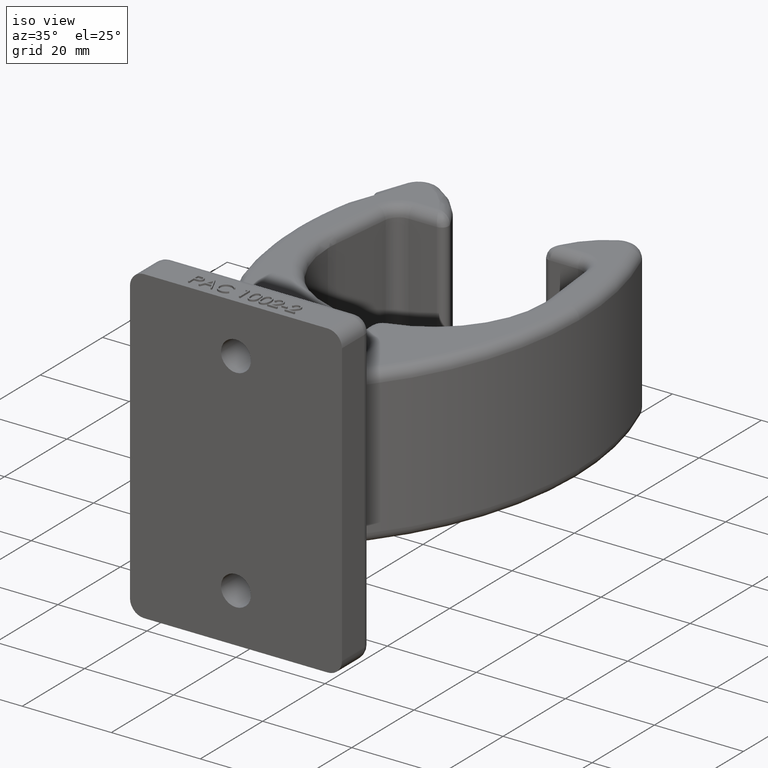
[diagram: clean part render]
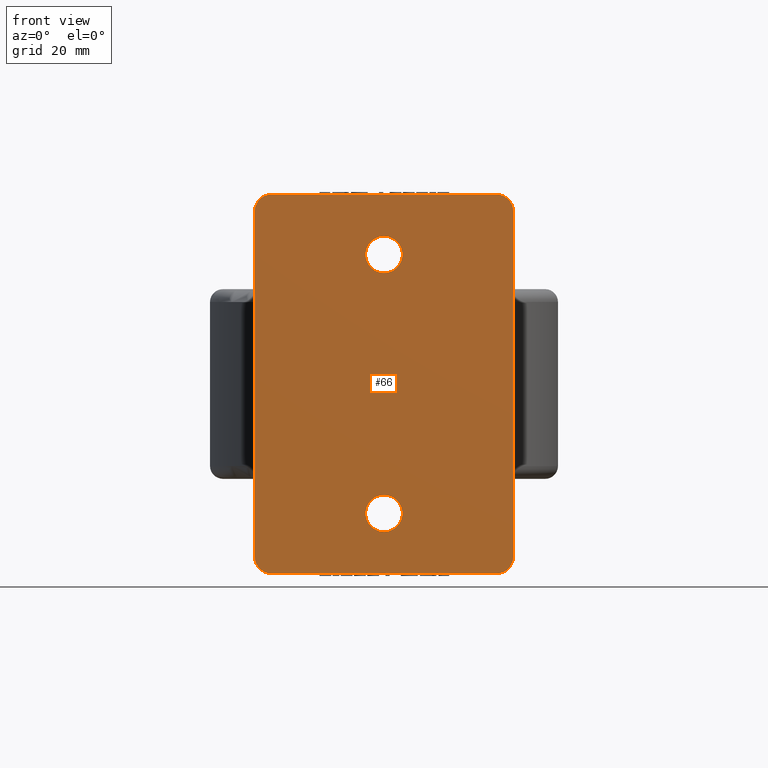
[diagram: tour spotlight — one face highlighted and labeled with its STEP entity id]
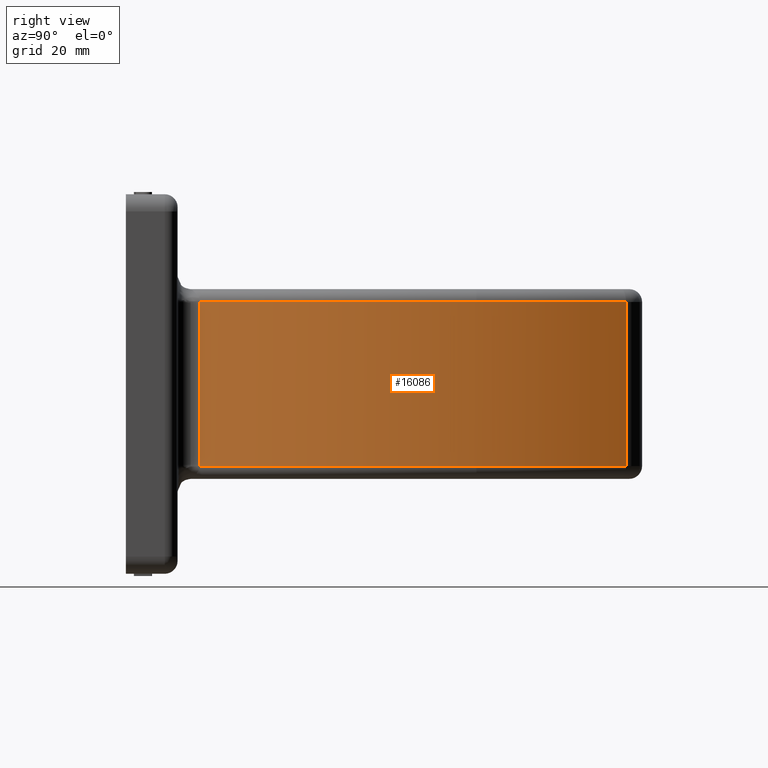
[diagram: tour spotlight — one face highlighted and labeled with its STEP entity id]
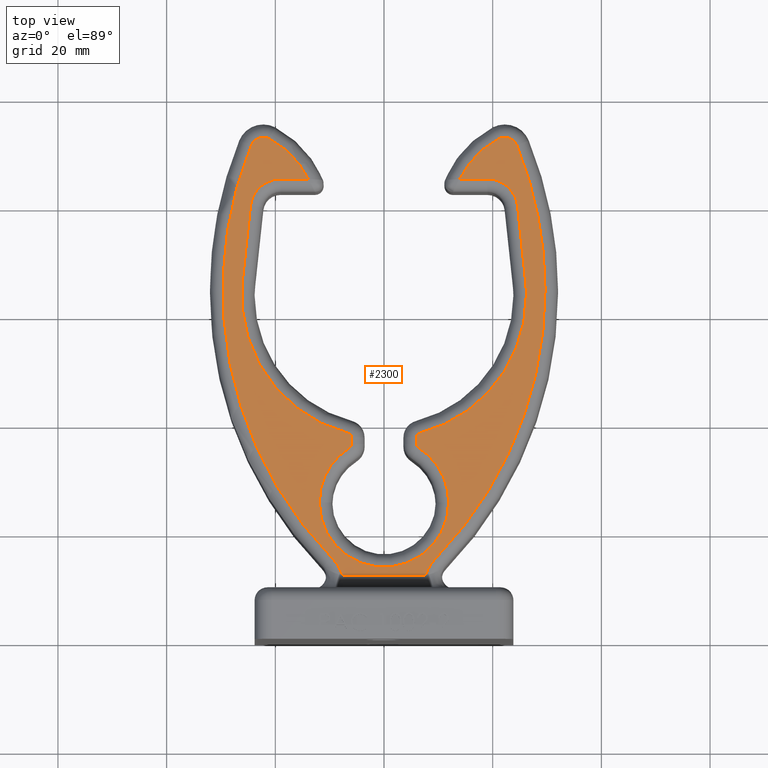
[diagram: tour spotlight — one face highlighted and labeled with its STEP entity id]
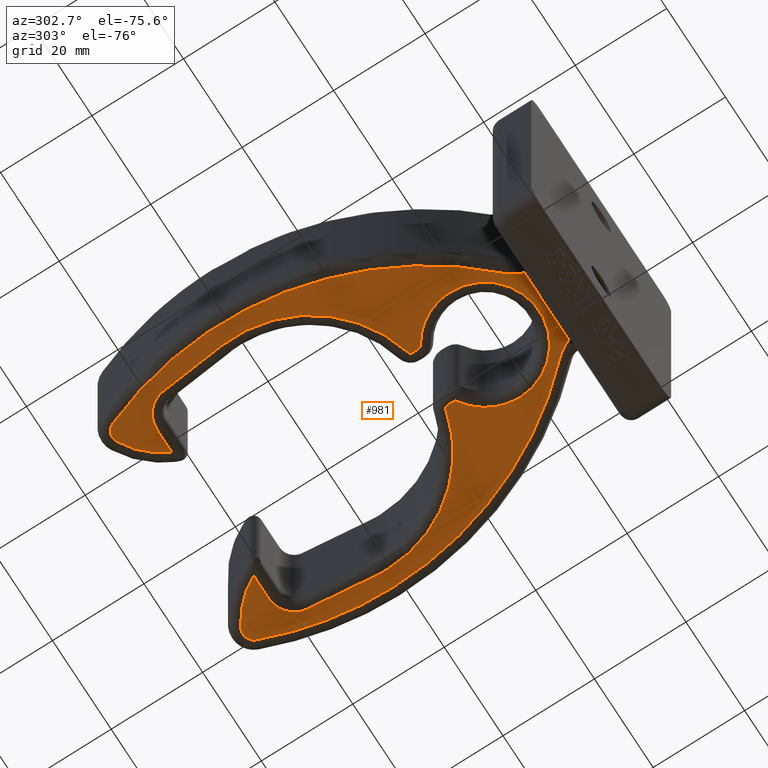
[diagram: tour spotlight — one face highlighted and labeled with its STEP entity id]
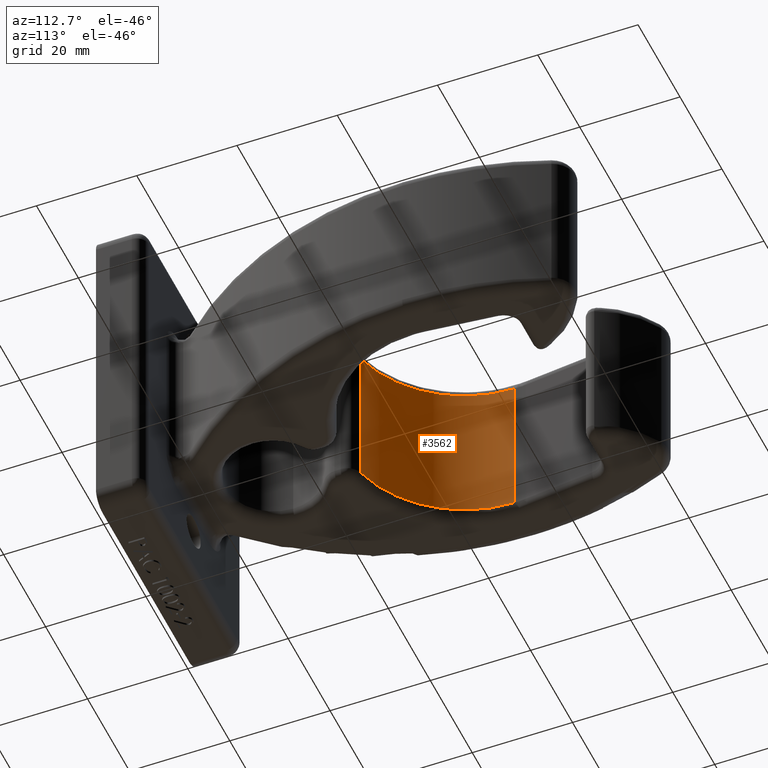
[diagram: tour spotlight — one face highlighted and labeled with its STEP entity id]
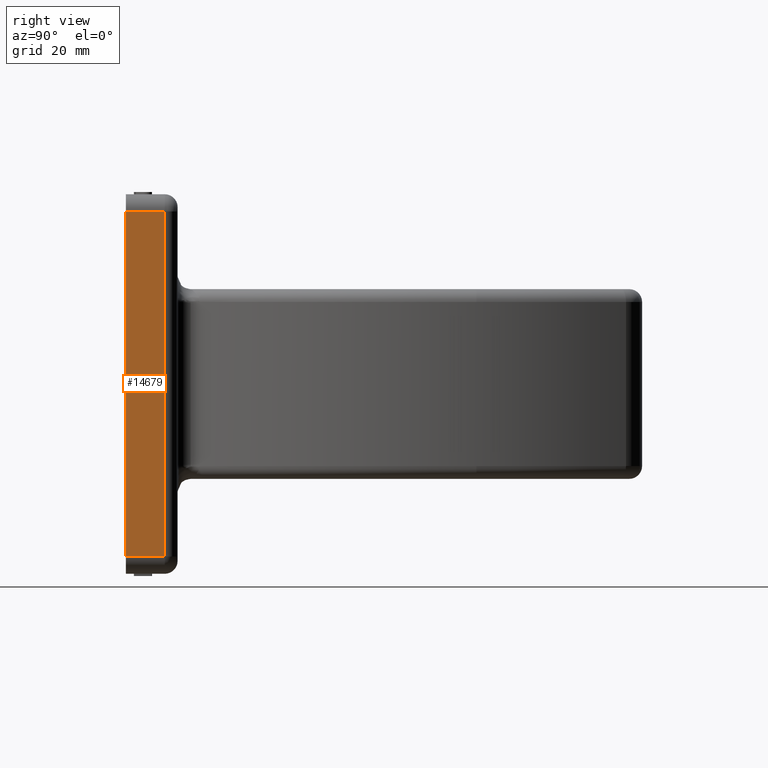
[diagram: tour spotlight — one face highlighted and labeled with its STEP entity id]
A machine part: a face-by-face anatomy tour. The part has 325 B-rep faces; the first image is the clean iso view, then the 6 largest visible faces are spotlighted one at a time (largest first), each with its STEP entity span.

Face 1 — front view, entity #66. In plain terms, the highlighted planar face has unit normal (0, 1, 0).
Definition (entity closure, byte-faithful):
#66 = ADVANCED_FACE ( 'NONE', ( #3694, #3322, #12929 ), #2989, .F. ) ;
#123 = CIRCLE ( 'NONE', #354, 0.1329999999999999200 ) ;
#278 = EDGE_CURVE ( 'NONE', #9881, #7498, #2133, .T. ) ;
#354 = AXIS2_PLACEMENT_3D ( 'NONE', #6169, #14947, #7419 ) ;
#450 = VERTEX_POINT ( 'NONE', #1454 ) ;
#455 = DIRECTION ( 'NONE',  ( -0.0000000000000000000, -0.0000000000000000000, -1.000000000000000000 ) ) ;
#565 = ORIENTED_EDGE ( 'NONE', *, *, #1770, .F. ) ;
#718 = VECTOR ( 'NONE', #15360, 39.37007874015748100 ) ;
#1014 = ORIENTED_EDGE ( 'NONE', *, *, #7482, .F. ) ;
#1385 = CARTESIAN_POINT ( 'NONE',  ( 0.9375000000000000000, 0.0000000000000000000, -1.250000000000000000 ) ) ;
#1454 = CARTESIAN_POINT ( 'NONE',  ( 0.8125000000000001100, 0.0000000000000000000, 1.375000000000000000 ) ) ;
#1467 = AXIS2_PLACEMENT_3D ( 'NONE', #3960, #12740, #5230 ) ;
#1638 = CARTESIAN_POINT ( 'NONE',  ( 0.9375000000000000000, 0.0000000000000000000, 0.6875000000000000000 ) ) ;
#1695 = DIRECTION ( 'NONE',  ( -0.0000000000000000000, -1.000000000000000000, -0.0000000000000000000 ) ) ;
#1730 = ORIENTED_EDGE ( 'NONE', *, *, #278, .T. ) ;
#1770 = EDGE_CURVE ( 'NONE', #5942, #4564, #7813, .T. ) ;
#1874 = DIRECTION ( 'NONE',  ( -0.0000000000000000000, -1.000000000000000000, -0.0000000000000000000 ) ) ;
#2001 = CARTESIAN_POINT ( 'NONE',  ( 0.8125000000000000000, 0.0000000000000000000, -1.375000000000000000 ) ) ;
#2073 = CARTESIAN_POINT ( 'NONE',  ( 0.9375000000000000000, 0.0000000000000000000, 1.250000000000000000 ) ) ;
#2133 = CIRCLE ( 'NONE', #14760, 0.1329999999999999200 ) ;
#2225 = VERTEX_POINT ( 'NONE', #6408 ) ;
#2228 = CARTESIAN_POINT ( 'NONE',  ( -0.9375000000000000000, 0.0000000000000000000, 0.6875000000000000000 ) ) ;
#2373 = DIRECTION ( 'NONE',  ( -0.0000000000000000000, 1.000000000000000000, -0.0000000000000000000 ) ) ;
#2539 = VERTEX_POINT ( 'NONE', #14388 ) ;
#2657 = CARTESIAN_POINT ( 'NONE',  ( 0.9375000000000000000, 0.0000000000000000000, -1.375000000000000000 ) ) ;
#2989 = PLANE ( 'NONE',  #8840 ) ;
#3322 = FACE_BOUND ( 'NONE', #5330, .T. ) ;
#3442 = VERTEX_POINT ( 'NONE', #13635 ) ;
#3694 = FACE_BOUND ( 'NONE', #10636, .T. ) ;
#3960 = CARTESIAN_POINT ( 'NONE',  ( -0.8125000000000001100, 0.0000000000000000000, -1.250000000000000000 ) ) ;
#4014 = ORIENTED_EDGE ( 'NONE', *, *, #8875, .T. ) ;
#4120 = ORIENTED_EDGE ( 'NONE', *, *, #10390, .T. ) ;
#4158 = CARTESIAN_POINT ( 'NONE',  ( -2.924299746574460700E-017, 0.0000000000000000000, -1.070500000000000000 ) ) ;
#4328 = CARTESIAN_POINT ( 'NONE',  ( -4.553079989440439900E-017, 0.0000000000000000000, 0.9375000000000000000 ) ) ;
#4373 = CARTESIAN_POINT ( 'NONE',  ( -0.9375000000000000000, 0.0000000000000000000, 0.6875000000000000000 ) ) ;
#4533 = AXIS2_PLACEMENT_3D ( 'NONE', #9887, #2373, #11128 ) ;
#4564 = VERTEX_POINT ( 'NONE', #5216 ) ;
#4984 = DIRECTION ( 'NONE',  ( 1.000000000000000000, 0.0000000000000000000, 0.0000000000000000000 ) ) ;
#5216 = CARTESIAN_POINT ( 'NONE',  ( -0.8125000000000001100, 0.0000000000000000000, -1.375000000000000000 ) ) ;
#5230 = DIRECTION ( 'NONE',  ( 0.0000000000000000000, 0.0000000000000000000, 1.000000000000000000 ) ) ;
#5330 = EDGE_LOOP ( 'NONE', ( #6920, #4120 ) ) ;
#5515 = CARTESIAN_POINT ( 'NONE',  ( 0.8125000000000001100, 0.0000000000000000000, 1.250000000000000000 ) ) ;
#5608 = DIRECTION ( 'NONE',  ( 0.0000000000000000000, 0.0000000000000000000, 1.000000000000000000 ) ) ;
#5696 = VERTEX_POINT ( 'NONE', #7289 ) ;
#5942 = VERTEX_POINT ( 'NONE', #2001 ) ;
#6169 = CARTESIAN_POINT ( 'NONE',  ( -4.553079989440439900E-017, 0.0000000000000000000, 0.9375000000000000000 ) ) ;
#6408 = CARTESIAN_POINT ( 'NONE',  ( -0.9375000000000000000, 0.0000000000000000000, -1.250000000000000000 ) ) ;
#6416 = EDGE_CURVE ( 'NONE', #13143, #3442, #15917, .T. ) ;
#6640 = DIRECTION ( 'NONE',  ( -0.0000000000000000000, -0.0000000000000000000, -1.000000000000000000 ) ) ;
#6789 = DIRECTION ( 'NONE',  ( 0.0000000000000000000, 0.0000000000000000000, 1.000000000000000000 ) ) ;
#6920 = ORIENTED_EDGE ( 'NONE', *, *, #6416, .T. ) ;
#6956 = VECTOR ( 'NONE', #4984, 39.37007874015748100 ) ;
#7289 = CARTESIAN_POINT ( 'NONE',  ( -0.9375000000000000000, 0.0000000000000000000, 1.250000000000000000 ) ) ;
#7419 = DIRECTION ( 'NONE',  ( 0.0000000000000000000, 0.0000000000000000000, 1.000000000000000000 ) ) ;
#7449 = EDGE_LOOP ( 'NONE', ( #1014, #13386, #11993, #12238, #9095, #14537, #565, #4014 ) ) ;
#7482 = EDGE_CURVE ( 'NONE', #10995, #10006, #12327, .T. ) ;
#7498 = VERTEX_POINT ( 'NONE', #4158 ) ;
#7789 = AXIS2_PLACEMENT_3D ( 'NONE', #9379, #1874, #7951 ) ;
#7813 = LINE ( 'NONE', #2657, #718 ) ;
#7951 = DIRECTION ( 'NONE',  ( 0.0000000000000000000, 0.0000000000000000000, 1.000000000000000000 ) ) ;
#8274 = AXIS2_PLACEMENT_3D ( 'NONE', #4328, #13105, #5608 ) ;
#8519 = CARTESIAN_POINT ( 'NONE',  ( -0.9375000000000000000, 0.0000000000000000000, 1.375000000000000000 ) ) ;
#8840 = AXIS2_PLACEMENT_3D ( 'NONE', #2228, #16134, #14853 ) ;
#8875 = EDGE_CURVE ( 'NONE', #5942, #10006, #12500, .T. ) ;
#9095 = ORIENTED_EDGE ( 'NONE', *, *, #13032, .T. ) ;
#9220 = CARTESIAN_POINT ( 'NONE',  ( 0.8125000000000000000, 0.0000000000000000000, -1.250000000000000000 ) ) ;
#9379 = CARTESIAN_POINT ( 'NONE',  ( -0.8125000000000000000, 0.0000000000000000000, 1.250000000000000000 ) ) ;
#9881 = VERTEX_POINT ( 'NONE', #14834 ) ;
#9887 = CARTESIAN_POINT ( 'NONE',  ( -4.553079989440439900E-017, 0.0000000000000000000, -0.9375000000000000000 ) ) ;
#9952 = VECTOR ( 'NONE', #455, 39.37007874015748100 ) ;
#10006 = VERTEX_POINT ( 'NONE', #1385 ) ;
#10203 = EDGE_CURVE ( 'NONE', #10995, #450, #13483, .T. ) ;
#10299 = DIRECTION ( 'NONE',  ( 0.0000000000000000000, 0.0000000000000000000, 1.000000000000000000 ) ) ;
#10390 = EDGE_CURVE ( 'NONE', #3442, #13143, #123, .T. ) ;
#10477 = DIRECTION ( 'NONE',  ( 0.0000000000000000000, 0.0000000000000000000, 1.000000000000000000 ) ) ;
#10636 = EDGE_LOOP ( 'NONE', ( #1730, #15157 ) ) ;
#10995 = VERTEX_POINT ( 'NONE', #2073 ) ;
#11128 = DIRECTION ( 'NONE',  ( 0.0000000000000000000, 0.0000000000000000000, 1.000000000000000000 ) ) ;
#11465 = CIRCLE ( 'NONE', #7789, 0.1249999999999999000 ) ;
#11632 = AXIS2_PLACEMENT_3D ( 'NONE', #5515, #14295, #6789 ) ;
#11952 = VECTOR ( 'NONE', #6640, 39.37007874015748100 ) ;
#11993 = ORIENTED_EDGE ( 'NONE', *, *, #15654, .F. ) ;
#12219 = CIRCLE ( 'NONE', #1467, 0.1250000000000000300 ) ;
#12238 = ORIENTED_EDGE ( 'NONE', *, *, #13803, .T. ) ;
#12327 = LINE ( 'NONE', #1638, #11952 ) ;
#12500 = CIRCLE ( 'NONE', #15103, 0.1250000000000000300 ) ;
#12740 = DIRECTION ( 'NONE',  ( -0.0000000000000000000, -1.000000000000000000, -0.0000000000000000000 ) ) ;
#12833 = CARTESIAN_POINT ( 'NONE',  ( -4.553079989440439900E-017, 0.0000000000000000000, -0.9375000000000000000 ) ) ;
#12901 = LINE ( 'NONE', #4373, #9952 ) ;
#12929 = FACE_OUTER_BOUND ( 'NONE', #7449, .T. ) ;
#13032 = EDGE_CURVE ( 'NONE', #5696, #2225, #12901, .T. ) ;
#13105 = DIRECTION ( 'NONE',  ( -0.0000000000000000000, 1.000000000000000000, -0.0000000000000000000 ) ) ;
#13143 = VERTEX_POINT ( 'NONE', #15933 ) ;
#13386 = ORIENTED_EDGE ( 'NONE', *, *, #10203, .T. ) ;
#13483 = CIRCLE ( 'NONE', #11632, 0.1249999999999999000 ) ;
#13532 = DIRECTION ( 'NONE',  ( -0.0000000000000000000, 1.000000000000000000, -0.0000000000000000000 ) ) ;
#13600 = LINE ( 'NONE', #8519, #6956 ) ;
#13635 = CARTESIAN_POINT ( 'NONE',  ( -2.924299746574460700E-017, 0.0000000000000000000, 0.8045000000000001000 ) ) ;
#13803 = EDGE_CURVE ( 'NONE', #2539, #5696, #11465, .T. ) ;
#14206 = CIRCLE ( 'NONE', #4533, 0.1329999999999999200 ) ;
#14295 = DIRECTION ( 'NONE',  ( -0.0000000000000000000, -1.000000000000000000, -0.0000000000000000000 ) ) ;
#14388 = CARTESIAN_POINT ( 'NONE',  ( -0.8125000000000000000, 0.0000000000000000000, 1.375000000000000000 ) ) ;
#14537 = ORIENTED_EDGE ( 'NONE', *, *, #15385, .T. ) ;
#14760 = AXIS2_PLACEMENT_3D ( 'NONE', #12833, #13532, #10299 ) ;
#14834 = CARTESIAN_POINT ( 'NONE',  ( -4.553079989440439900E-017, 0.0000000000000000000, -0.8045000000000001000 ) ) ;
#14853 = DIRECTION ( 'NONE',  ( 0.0000000000000000000, -0.0000000000000000000, 1.000000000000000000 ) ) ;
#14947 = DIRECTION ( 'NONE',  ( -0.0000000000000000000, 1.000000000000000000, -0.0000000000000000000 ) ) ;
#15103 = AXIS2_PLACEMENT_3D ( 'NONE', #9220, #1695, #10477 ) ;
#15157 = ORIENTED_EDGE ( 'NONE', *, *, #15963, .T. ) ;
#15360 = DIRECTION ( 'NONE',  ( -1.000000000000000000, 0.0000000000000000000, 0.0000000000000000000 ) ) ;
#15385 = EDGE_CURVE ( 'NONE', #2225, #4564, #12219, .T. ) ;
#15654 = EDGE_CURVE ( 'NONE', #2539, #450, #13600, .T. ) ;
#15917 = CIRCLE ( 'NONE', #8274, 0.1329999999999999200 ) ;
#15933 = CARTESIAN_POINT ( 'NONE',  ( -4.553079989440439900E-017, 0.0000000000000000000, 1.070500000000000000 ) ) ;
#15963 = EDGE_CURVE ( 'NONE', #7498, #9881, #14206, .T. ) ;
#16134 = DIRECTION ( 'NONE',  ( 0.0000000000000000000, 1.000000000000000000, 0.0000000000000000000 ) ) ;

Face 2 — right view, entity #16086. In plain terms, the highlighted cylindrical surface (partial cylindrical patch) has radius 73.025 mm, axis along (-0, -0, -1).
Definition (entity closure, byte-faithful):
#213 = AXIS2_PLACEMENT_3D ( 'NONE', #13378, #5864, #14660 ) ;
#929 = DIRECTION ( 'NONE',  ( 1.000000000000000000, 0.0000000000000000000, 0.0000000000000000000 ) ) ;
#1207 = ORIENTED_EDGE ( 'NONE', *, *, #2640, .T. ) ;
#2533 = CIRCLE ( 'NONE', #8048, 2.875000000000000400 ) ;
#2588 = DIRECTION ( 'NONE',  ( -1.000000000000000000, 0.0000000000000000000, 0.0000000000000000000 ) ) ;
#2640 = EDGE_CURVE ( 'NONE', #12735, #11656, #5047, .T. ) ;
#2791 = ORIENTED_EDGE ( 'NONE', *, *, #5597, .T. ) ;
#3569 = CARTESIAN_POINT ( 'NONE',  ( 1.260724445850882800, 2.539502731733396700, -0.5937499999999998900 ) ) ;
#4133 = VERTEX_POINT ( 'NONE', #14025 ) ;
#4723 = ORIENTED_EDGE ( 'NONE', *, *, #7803, .F. ) ;
#4764 = DIRECTION ( 'NONE',  ( -0.0000000000000000000, -0.0000000000000000000, -1.000000000000000000 ) ) ;
#4785 = ORIENTED_EDGE ( 'NONE', *, *, #5397, .T. ) ;
#5012 = CARTESIAN_POINT ( 'NONE',  ( 1.048670387498776200, 3.623174228018600600, 0.6875000000000000000 ) ) ;
#5047 = CIRCLE ( 'NONE', #213, 2.875000000000000400 ) ;
#5397 = EDGE_CURVE ( 'NONE', #12354, #4133, #13737, .T. ) ;
#5597 = EDGE_CURVE ( 'NONE', #11656, #7900, #2533, .T. ) ;
#5705 = CARTESIAN_POINT ( 'NONE',  ( -1.614275554149117600, 2.539502731733396700, 0.5937500000000000000 ) ) ;
#5864 = DIRECTION ( 'NONE',  ( -0.0000000000000000000, -0.0000000000000000000, -1.000000000000000000 ) ) ;
#6263 = VECTOR ( 'NONE', #11269, 39.37007874015748100 ) ;
#6333 = DIRECTION ( 'NONE',  ( -0.0000000000000000000, -0.0000000000000000000, -1.000000000000000000 ) ) ;
#6335 = CYLINDRICAL_SURFACE ( 'NONE', #10397, 2.875000000000000400 ) ;
#6978 = DIRECTION ( 'NONE',  ( 1.000000000000000000, 0.0000000000000000000, 0.0000000000000000000 ) ) ;
#7037 = CIRCLE ( 'NONE', #9432, 2.875000000000000400 ) ;
#7196 = DIRECTION ( 'NONE',  ( 0.0000000000000000000, 0.0000000000000000000, 1.000000000000000000 ) ) ;
#7251 = CARTESIAN_POINT ( 'NONE',  ( 1.048670387498776200, 3.623174228018600600, 0.5937500000000000000 ) ) ;
#7803 = EDGE_CURVE ( 'NONE', #12735, #4133, #13336, .T. ) ;
#7900 = VERTEX_POINT ( 'NONE', #12821 ) ;
#8048 = AXIS2_PLACEMENT_3D ( 'NONE', #5705, #14494, #6978 ) ;
#8478 = DIRECTION ( 'NONE',  ( 0.0000000000000000000, 0.0000000000000000000, 1.000000000000000000 ) ) ;
#8593 = VECTOR ( 'NONE', #4764, 39.37007874015748100 ) ;
#9432 = AXIS2_PLACEMENT_3D ( 'NONE', #16023, #8478, #929 ) ;
#9591 = EDGE_CURVE ( 'NONE', #13401, #12354, #7037, .T. ) ;
#9885 = ORIENTED_EDGE ( 'NONE', *, *, #9591, .T. ) ;
#10098 = CARTESIAN_POINT ( 'NONE',  ( -1.614275554149117600, 2.539502731733396700, 0.6875000000000000000 ) ) ;
#10397 = AXIS2_PLACEMENT_3D ( 'NONE', #10098, #6333, #2588 ) ;
#10764 = CARTESIAN_POINT ( 'NONE',  ( 1.260724445850882800, 2.539502731733396700, 0.5937500000000000000 ) ) ;
#11013 = CARTESIAN_POINT ( 'NONE',  ( 0.4458589326717841100, 0.5341421915284230200, 0.6875000000000000000 ) ) ;
#11269 = DIRECTION ( 'NONE',  ( -0.0000000000000000000, -0.0000000000000000000, -1.000000000000000000 ) ) ;
#11656 = VERTEX_POINT ( 'NONE', #10764 ) ;
#12306 = LINE ( 'NONE', #11013, #8593 ) ;
#12354 = VERTEX_POINT ( 'NONE', #3569 ) ;
#12735 = VERTEX_POINT ( 'NONE', #7251 ) ;
#12766 = EDGE_CURVE ( 'NONE', #7900, #13401, #12306, .T. ) ;
#12821 = CARTESIAN_POINT ( 'NONE',  ( 0.4458589326717841100, 0.5341421915284230200, 0.5937500000000000000 ) ) ;
#13001 = FACE_OUTER_BOUND ( 'NONE', #14792, .T. ) ;
#13336 = LINE ( 'NONE', #5012, #6263 ) ;
#13378 = CARTESIAN_POINT ( 'NONE',  ( -1.614275554149117600, 2.539502731733396700, 0.5937500000000000000 ) ) ;
#13401 = VERTEX_POINT ( 'NONE', #14252 ) ;
#13737 = CIRCLE ( 'NONE', #15078, 2.875000000000000400 ) ;
#14025 = CARTESIAN_POINT ( 'NONE',  ( 1.048670387498776200, 3.623174228018600600, -0.5937499999999998900 ) ) ;
#14252 = CARTESIAN_POINT ( 'NONE',  ( 0.4458589326717843900, 0.5341421915284232400, -0.5937499999999998900 ) ) ;
#14494 = DIRECTION ( 'NONE',  ( -0.0000000000000000000, -0.0000000000000000000, -1.000000000000000000 ) ) ;
#14660 = DIRECTION ( 'NONE',  ( 1.000000000000000000, -3.610790391625808000E-015, 0.0000000000000000000 ) ) ;
#14711 = CARTESIAN_POINT ( 'NONE',  ( -1.614275554149117600, 2.539502731733396700, -0.5937499999999998900 ) ) ;
#14792 = EDGE_LOOP ( 'NONE', ( #1207, #2791, #15718, #9885, #4785, #4723 ) ) ;
#15078 = AXIS2_PLACEMENT_3D ( 'NONE', #14711, #7196, #15998 ) ;
#15718 = ORIENTED_EDGE ( 'NONE', *, *, #12766, .T. ) ;
#15998 = DIRECTION ( 'NONE',  ( 1.000000000000000000, 0.0000000000000000000, 0.0000000000000000000 ) ) ;
#16023 = CARTESIAN_POINT ( 'NONE',  ( -1.614275554149117600, 2.539502731733396700, -0.5937499999999998900 ) ) ;
#16086 = ADVANCED_FACE ( 'NONE', ( #13001 ), #6335, .T. ) ;

Face 3 — top view, entity #2300. In plain terms, the highlighted planar face has unit normal (0, 0, 1).
Definition (entity closure, byte-faithful):
#30 = DIRECTION ( 'NONE',  ( 0.0000000000000000000, 0.0000000000000000000, 1.000000000000000000 ) ) ;
#168 = CARTESIAN_POINT ( 'NONE',  ( -0.7500000000000003300, 3.343750000000000400, 0.6875000000000000000 ) ) ;
#218 = CARTESIAN_POINT ( 'NONE',  ( -0.9618351937493884200, 3.587837114009300200, 0.6875000000000000000 ) ) ;
#386 = CARTESIAN_POINT ( 'NONE',  ( 1.039584050761993800, 2.477730078964508900, 0.6875000000000000000 ) ) ;
#423 = DIRECTION ( 'NONE',  ( 1.000000000000000000, 0.0000000000000000000, 0.0000000000000000000 ) ) ;
#482 = EDGE_CURVE ( 'NONE', #9236, #14940, #9775, .T. ) ;
#493 = DIRECTION ( 'NONE',  ( 0.1068727522371608100, -0.9942727064690322100, -0.0000000000000000000 ) ) ;
#535 = VECTOR ( 'NONE', #15644, 39.37007874015748100 ) ;
#536 = CARTESIAN_POINT ( 'NONE',  ( 0.2986596067393987300, 0.4687500000000001700, 0.6875000000000000000 ) ) ;
#552 = ORIENTED_EDGE ( 'NONE', *, *, #2891, .T. ) ;
#556 = CARTESIAN_POINT ( 'NONE',  ( -0.3782378103534858600, 0.5990795678903864100, 0.6875000000000000000 ) ) ;
#582 = VERTEX_POINT ( 'NONE', #10004 ) ;
#620 = DIRECTION ( 'NONE',  ( -0.0000000000000000000, -0.0000000000000000000, -1.000000000000000000 ) ) ;
#750 = DIRECTION ( 'NONE',  ( 1.000000000000000000, 0.0000000000000000000, 0.0000000000000000000 ) ) ;
#990 = CARTESIAN_POINT ( 'NONE',  ( 0.0000000000000000000, 2.500000000000000000, 0.6875000000000000000 ) ) ;
#1049 = ORIENTED_EDGE ( 'NONE', *, *, #8623, .T. ) ;
#1057 = LINE ( 'NONE', #386, #4004 ) ;
#1093 = AXIS2_PLACEMENT_3D ( 'NONE', #13085, #5591, #14375 ) ;
#1098 = CARTESIAN_POINT ( 'NONE',  ( -1.137447155958627200, 3.054978402147979100, 0.6875000000000000000 ) ) ;
#1216 = CARTESIAN_POINT ( 'NONE',  ( 0.2343749999999998300, 1.423607553491436300, 0.6875000000000000000 ) ) ;
#1394 = DIRECTION ( 'NONE',  ( -0.0000000000000000000, -0.0000000000000000000, -1.000000000000000000 ) ) ;
#1498 = CARTESIAN_POINT ( 'NONE',  ( -0.4687500000000000000, 1.000000000000000000, 0.6875000000000000000 ) ) ;
#1514 = DIRECTION ( 'NONE',  ( 0.0000000000000000000, 0.0000000000000000000, 1.000000000000000000 ) ) ;
#1565 = CARTESIAN_POINT ( 'NONE',  ( 1.614275554149117800, 0.4687500000000002800, 0.6875000000000000000 ) ) ;
#1591 = CARTESIAN_POINT ( 'NONE',  ( -0.5000000000000004400, 3.343750000000000400, 0.6875000000000000000 ) ) ;
#1657 = VERTEX_POINT ( 'NONE', #14860 ) ;
#1696 = CARTESIAN_POINT ( 'NONE',  ( 0.2656249999999997800, 1.423607553491436300, 0.6875000000000000000 ) ) ;
#1816 = CARTESIAN_POINT ( 'NONE',  ( 1.025343728546189900, 2.610212525744572100, 0.6875000000000000000 ) ) ;
#1848 = EDGE_CURVE ( 'NONE', #9470, #10780, #16259, .T. ) ;
#1903 = DIRECTION ( 'NONE',  ( 3.584632293081501700E-016, 1.000000000000000000, 0.0000000000000000000 ) ) ;
#1958 = CARTESIAN_POINT ( 'NONE',  ( -0.2343749999999999700, 1.471238798663654800, 0.6875000000000000000 ) ) ;
#2259 = DIRECTION ( 'NONE',  ( 1.000000000000000000, 0.0000000000000000000, 0.0000000000000000000 ) ) ;
#2300 = ADVANCED_FACE ( 'NONE', ( #7060 ), #5255, .T. ) ;
#2326 = EDGE_CURVE ( 'NONE', #1657, #13782, #13321, .T. ) ;
#2346 = ORIENTED_EDGE ( 'NONE', *, *, #8203, .T. ) ;
#2361 = CIRCLE ( 'NONE', #4354, 0.3437500000000000000 ) ;
#2375 = DIRECTION ( 'NONE',  ( 1.000000000000000000, 0.0000000000000000000, 0.0000000000000000000 ) ) ;
#2611 = ORIENTED_EDGE ( 'NONE', *, *, #7487, .T. ) ;
#2797 = CARTESIAN_POINT ( 'NONE',  ( 0.0000000000000000000, 1.000000000000000000, 0.6875000000000000000 ) ) ;
#2851 = DIRECTION ( 'NONE',  ( 0.0000000000000000000, 0.0000000000000000000, 1.000000000000000000 ) ) ;
#2889 = DIRECTION ( 'NONE',  ( 0.0000000000000000000, 0.0000000000000000000, 1.000000000000000000 ) ) ;
#2891 = EDGE_CURVE ( 'NONE', #12652, #15942, #9377, .T. ) ;
#2901 = DIRECTION ( 'NONE',  ( 1.000000000000000000, -0.0000000000000000000, -0.0000000000000000000 ) ) ;
#2981 = DIRECTION ( 'NONE',  ( 1.000000000000000000, 0.0000000000000000000, 0.0000000000000000000 ) ) ;
#3006 = CIRCLE ( 'NONE', #12087, 2.781250000000000400 ) ;
#3123 = CIRCLE ( 'NONE', #7859, 0.6562500000000000000 ) ;
#3327 = EDGE_CURVE ( 'NONE', #7867, #3767, #12900, .T. ) ;
#3347 = VECTOR ( 'NONE', #7863, 39.37007874015748100 ) ;
#3358 = CARTESIAN_POINT ( 'NONE',  ( -0.2986596067394011200, 0.4687500000000000000, 0.6875000000000000000 ) ) ;
#3507 = CIRCLE ( 'NONE', #7741, 0.6562500000000001100 ) ;
#3528 = VERTEX_POINT ( 'NONE', #1216 ) ;
#3584 = CARTESIAN_POINT ( 'NONE',  ( 0.0000000000000000000, 1.000000000000000000, 0.6875000000000000000 ) ) ;
#3659 = VECTOR ( 'NONE', #1903, 39.37007874015748100 ) ;
#3767 = VERTEX_POINT ( 'NONE', #9511 ) ;
#3769 = CIRCLE ( 'NONE', #7910, 0.03124999999999994100 ) ;
#3811 = CARTESIAN_POINT ( 'NONE',  ( -0.7500000000000003300, 3.125000000000000000, 0.6875000000000000000 ) ) ;
#3879 = LINE ( 'NONE', #14371, #535 ) ;
#3927 = ORIENTED_EDGE ( 'NONE', *, *, #9645, .T. ) ;
#4004 = VECTOR ( 'NONE', #493, 39.37007874015748900 ) ;
#4039 = DIRECTION ( 'NONE',  ( 1.000000000000000000, 0.0000000000000000000, 0.0000000000000000000 ) ) ;
#4072 = CIRCLE ( 'NONE', #6704, 1.031250000000000400 ) ;
#4178 = VERTEX_POINT ( 'NONE', #5295 ) ;
#4181 = AXIS2_PLACEMENT_3D ( 'NONE', #13104, #5607, #14402 ) ;
#4223 = AXIS2_PLACEMENT_3D ( 'NONE', #5585, #14368, #6841 ) ;
#4244 = ORIENTED_EDGE ( 'NONE', *, *, #4787, .T. ) ;
#4290 = DIRECTION ( 'NONE',  ( -0.0000000000000000000, -0.0000000000000000000, -1.000000000000000000 ) ) ;
#4298 = EDGE_CURVE ( 'NONE', #13972, #14429, #2361, .T. ) ;
#4307 = AXIS2_PLACEMENT_3D ( 'NONE', #10388, #2889, #11664 ) ;
#4354 = AXIS2_PLACEMENT_3D ( 'NONE', #11816, #4290, #13074 ) ;
#4446 = CARTESIAN_POINT ( 'NONE',  ( 1.614275554149117600, 2.539502731733396700, 0.6875000000000000000 ) ) ;
#4448 = CARTESIAN_POINT ( 'NONE',  ( -1.025343728546190200, 2.610212525744572100, 0.6875000000000000000 ) ) ;
#4516 = DIRECTION ( 'NONE',  ( 0.0000000000000000000, 0.0000000000000000000, 1.000000000000000000 ) ) ;
#4589 = CIRCLE ( 'NONE', #4307, 2.781250000000000400 ) ;
#4621 = EDGE_CURVE ( 'NONE', #14940, #14007, #10010, .T. ) ;
#4787 = EDGE_CURVE ( 'NONE', #13161, #11929, #15127, .T. ) ;
#4833 = CARTESIAN_POINT ( 'NONE',  ( 0.5481467005252461700, 3.343750000000000400, 0.6875000000000000000 ) ) ;
#4834 = DIRECTION ( 'NONE',  ( 1.000000000000000000, 0.0000000000000000000, 0.0000000000000000000 ) ) ;
#4949 = CARTESIAN_POINT ( 'NONE',  ( 0.0000000000000000000, 2.500000000000000000, 0.6875000000000000000 ) ) ;
#5005 = DIRECTION ( 'NONE',  ( 0.1068727522371608100, 0.9942727064690322100, 0.0000000000000000000 ) ) ;
#5156 = VERTEX_POINT ( 'NONE', #9149 ) ;
#5174 = AXIS2_PLACEMENT_3D ( 'NONE', #3811, #1394, #9738 ) ;
#5188 = CARTESIAN_POINT ( 'NONE',  ( 0.0000000000000000000, 2.500000000000000000, 0.6875000000000000000 ) ) ;
#5255 = PLANE ( 'NONE',  #8958 ) ;
#5291 = VECTOR ( 'NONE', #2901, 39.37007874015748100 ) ;
#5295 = CARTESIAN_POINT ( 'NONE',  ( -0.2490234374999997200, 1.397132081398221800, 0.6875000000000000000 ) ) ;
#5450 = LINE ( 'NONE', #11260, #14693 ) ;
#5556 = VERTEX_POINT ( 'NONE', #5595 ) ;
#5585 = CARTESIAN_POINT ( 'NONE',  ( 0.7500000000000003300, 3.125000000000000000, 0.6875000000000000000 ) ) ;
#5591 = DIRECTION ( 'NONE',  ( 0.0000000000000000000, 0.0000000000000000000, 1.000000000000000000 ) ) ;
#5595 = CARTESIAN_POINT ( 'NONE',  ( 0.2490234374999998100, 1.397132081398221800, 0.6875000000000000000 ) ) ;
#5607 = DIRECTION ( 'NONE',  ( 0.0000000000000000000, 0.0000000000000000000, 1.000000000000000000 ) ) ;
#5624 = CARTESIAN_POINT ( 'NONE',  ( -0.2656249999999997800, 1.471238798663654800, 0.6875000000000000000 ) ) ;
#5700 = LINE ( 'NONE', #9151, #5291 ) ;
#5736 = DIRECTION ( 'NONE',  ( 1.000000000000000000, 0.0000000000000000000, 0.0000000000000000000 ) ) ;
#5752 = AXIS2_PLACEMENT_3D ( 'NONE', #15843, #8303, #750 ) ;
#5769 = ORIENTED_EDGE ( 'NONE', *, *, #1848, .T. ) ;
#5934 = EDGE_CURVE ( 'NONE', #13782, #8664, #3507, .T. ) ;
#6069 = EDGE_CURVE ( 'NONE', #3767, #12161, #8613, .T. ) ;
#6080 = VERTEX_POINT ( 'NONE', #536 ) ;
#6122 = CARTESIAN_POINT ( 'NONE',  ( 1.166974445850882600, 2.539502731733396700, 0.6875000000000000000 ) ) ;
#6218 = DIRECTION ( 'NONE',  ( 1.000000000000000000, 0.0000000000000000000, 0.0000000000000000000 ) ) ;
#6250 = CARTESIAN_POINT ( 'NONE',  ( 0.9674971545401014300, 3.148378414551879200, 0.6875000000000000000 ) ) ;
#6279 = ORIENTED_EDGE ( 'NONE', *, *, #16112, .T. ) ;
#6436 = CIRCLE ( 'NONE', #4181, 0.09375000000000061100 ) ;
#6444 = DIRECTION ( 'NONE',  ( 1.000000000000000000, 1.960307893635446300E-014, 0.0000000000000000000 ) ) ;
#6455 = CIRCLE ( 'NONE', #7026, 0.4687500000000000000 ) ;
#6516 = ORIENTED_EDGE ( 'NONE', *, *, #9233, .T. ) ;
#6524 = ORIENTED_EDGE ( 'NONE', *, *, #16061, .T. ) ;
#6552 = CARTESIAN_POINT ( 'NONE',  ( 0.3782378103534825800, 0.5990795678903838600, 0.6875000000000000000 ) ) ;
#6675 = CARTESIAN_POINT ( 'NONE',  ( 0.7500000000000003300, 3.343750000000000400, 0.6875000000000000000 ) ) ;
#6702 = EDGE_CURVE ( 'NONE', #11929, #3528, #3879, .T. ) ;
#6704 = AXIS2_PLACEMENT_3D ( 'NONE', #4949, #13730, #6218 ) ;
#6804 = AXIS2_PLACEMENT_3D ( 'NONE', #1696, #10478, #2981 ) ;
#6841 = DIRECTION ( 'NONE',  ( 1.000000000000000000, 0.0000000000000000000, 0.0000000000000000000 ) ) ;
#6892 = DIRECTION ( 'NONE',  ( 1.000000000000000000, 0.0000000000000000000, 0.0000000000000000000 ) ) ;
#6914 = CARTESIAN_POINT ( 'NONE',  ( -0.5481467005252461700, 3.343750000000000400, 0.6875000000000000000 ) ) ;
#7026 = AXIS2_PLACEMENT_3D ( 'NONE', #3584, #12341, #4834 ) ;
#7060 = FACE_OUTER_BOUND ( 'NONE', #7882, .T. ) ;
#7116 = VERTEX_POINT ( 'NONE', #6552 ) ;
#7156 = EDGE_CURVE ( 'NONE', #3528, #5556, #13934, .T. ) ;
#7306 = ORIENTED_EDGE ( 'NONE', *, *, #15047, .T. ) ;
#7320 = ORIENTED_EDGE ( 'NONE', *, *, #13928, .T. ) ;
#7487 = EDGE_CURVE ( 'NONE', #8664, #9470, #5700, .T. ) ;
#7590 = CARTESIAN_POINT ( 'NONE',  ( -0.2656249999999997800, 1.423607553491436300, 0.6875000000000000000 ) ) ;
#7680 = ORIENTED_EDGE ( 'NONE', *, *, #7156, .T. ) ;
#7741 = AXIS2_PLACEMENT_3D ( 'NONE', #12025, #4516, #13291 ) ;
#7825 = AXIS2_PLACEMENT_3D ( 'NONE', #5188, #13973, #6444 ) ;
#7859 = AXIS2_PLACEMENT_3D ( 'NONE', #1098, #9889, #2375 ) ;
#7863 = DIRECTION ( 'NONE',  ( 1.000000000000000000, 0.0000000000000000000, 0.0000000000000000000 ) ) ;
#7867 = VERTEX_POINT ( 'NONE', #10176 ) ;
#7882 = EDGE_LOOP ( 'NONE', ( #13384, #11787, #13160, #13739, #7306, #13586, #11974, #2611, #5769, #7320, #552, #1049, #4244, #12566, #7680, #2346, #6279, #6516, #6524, #8248, #15142, #3927, #14922, #15520, #12368, #15785, #14153, #11437 ) ) ;
#7904 = EDGE_CURVE ( 'NONE', #14429, #6080, #15506, .T. ) ;
#7910 = AXIS2_PLACEMENT_3D ( 'NONE', #7590, #30, #8841 ) ;
#7977 = DIRECTION ( 'NONE',  ( -0.0000000000000000000, -0.0000000000000000000, -1.000000000000000000 ) ) ;
#8073 = AXIS2_PLACEMENT_3D ( 'NONE', #2797, #11556, #4039 ) ;
#8101 = EDGE_CURVE ( 'NONE', #7116, #8286, #13916, .T. ) ;
#8168 = CARTESIAN_POINT ( 'NONE',  ( 0.6245035070897592100, 0.3592519858423712200, 0.6875000000000000000 ) ) ;
#8203 = EDGE_CURVE ( 'NONE', #5556, #582, #6455, .T. ) ;
#8214 = EDGE_CURVE ( 'NONE', #14007, #5156, #3123, .T. ) ;
#8248 = ORIENTED_EDGE ( 'NONE', *, *, #3327, .T. ) ;
#8286 = VERTEX_POINT ( 'NONE', #6122 ) ;
#8303 = DIRECTION ( 'NONE',  ( 0.0000000000000000000, 0.0000000000000000000, 1.000000000000000000 ) ) ;
#8613 = CIRCLE ( 'NONE', #13618, 0.03124999999999997600 ) ;
#8623 = EDGE_CURVE ( 'NONE', #15942, #13161, #4072, .T. ) ;
#8664 = VERTEX_POINT ( 'NONE', #4833 ) ;
#8805 = VECTOR ( 'NONE', #10331, 39.37007874015748100 ) ;
#8841 = DIRECTION ( 'NONE',  ( 1.000000000000000000, 0.0000000000000000000, 0.0000000000000000000 ) ) ;
#8958 = AXIS2_PLACEMENT_3D ( 'NONE', #12769, #1514, #10294 ) ;
#9149 = CARTESIAN_POINT ( 'NONE',  ( -0.8312588073402286100, 3.635420266308669700, 0.6875000000000000000 ) ) ;
#9151 = CARTESIAN_POINT ( 'NONE',  ( 1.614275554149117600, 3.343750000000000400, 0.6875000000000000000 ) ) ;
#9159 = CARTESIAN_POINT ( 'NONE',  ( 0.8312588073402286100, 3.635420266308669700, 0.6875000000000000000 ) ) ;
#9233 = EDGE_CURVE ( 'NONE', #11370, #4178, #9373, .T. ) ;
#9236 = VERTEX_POINT ( 'NONE', #10298 ) ;
#9373 = CIRCLE ( 'NONE', #8073, 0.4687500000000000000 ) ;
#9377 = CIRCLE ( 'NONE', #7825, 1.031250000000000400 ) ;
#9415 = DIRECTION ( 'NONE',  ( 1.000000000000000000, 0.0000000000000000000, 0.0000000000000000000 ) ) ;
#9470 = VERTEX_POINT ( 'NONE', #6675 ) ;
#9511 = CARTESIAN_POINT ( 'NONE',  ( -0.2343749999999998100, 1.471238798663654800, 0.6875000000000000000 ) ) ;
#9576 = AXIS2_PLACEMENT_3D ( 'NONE', #15498, #7977, #423 ) ;
#9645 = EDGE_CURVE ( 'NONE', #12161, #9817, #9947, .T. ) ;
#9738 = DIRECTION ( 'NONE',  ( 1.000000000000000000, 0.0000000000000000000, 0.0000000000000000000 ) ) ;
#9766 = DIRECTION ( 'NONE',  ( -0.0000000000000000000, -0.0000000000000000000, -1.000000000000000000 ) ) ;
#9775 = CIRCLE ( 'NONE', #5174, 0.2187500000000003600 ) ;
#9800 = AXIS2_PLACEMENT_3D ( 'NONE', #10339, #2851, #11612 ) ;
#9817 = VERTEX_POINT ( 'NONE', #4448 ) ;
#9889 = DIRECTION ( 'NONE',  ( 0.0000000000000000000, 0.0000000000000000000, 1.000000000000000000 ) ) ;
#9947 = CIRCLE ( 'NONE', #13641, 1.031250000000000400 ) ;
#10004 = CARTESIAN_POINT ( 'NONE',  ( 0.4687500000000000000, 1.000000000000000000, 0.6875000000000000000 ) ) ;
#10010 = LINE ( 'NONE', #1591, #3347 ) ;
#10176 = CARTESIAN_POINT ( 'NONE',  ( -0.2343750000000000000, 1.423607553491436300, 0.6875000000000000000 ) ) ;
#10294 = DIRECTION ( 'NONE',  ( 1.000000000000000000, 0.0000000000000000000, -0.0000000000000000000 ) ) ;
#10298 = CARTESIAN_POINT ( 'NONE',  ( -0.9674971545401015400, 3.148378414551879200, 0.6875000000000000000 ) ) ;
#10331 = DIRECTION ( 'NONE',  ( 1.000000000000000000, 1.214154663850783700E-016, -0.0000000000000000000 ) ) ;
#10339 = CARTESIAN_POINT ( 'NONE',  ( 0.8750000000000000000, 3.552499999999999800, 0.6875000000000000000 ) ) ;
#10388 = CARTESIAN_POINT ( 'NONE',  ( -1.614275554149117600, 2.539502731733396700, 0.6875000000000000000 ) ) ;
#10478 = DIRECTION ( 'NONE',  ( 0.0000000000000000000, 0.0000000000000000000, 1.000000000000000000 ) ) ;
#10780 = VERTEX_POINT ( 'NONE', #6250 ) ;
#11095 = CARTESIAN_POINT ( 'NONE',  ( 0.2578124999999995600, 1.501496481055900200, 0.6875000000000000000 ) ) ;
#11260 = CARTESIAN_POINT ( 'NONE',  ( -0.9674971545401016600, 3.148378414551879200, 0.6875000000000000000 ) ) ;
#11331 = VERTEX_POINT ( 'NONE', #218 ) ;
#11370 = VERTEX_POINT ( 'NONE', #1498 ) ;
#11437 = ORIENTED_EDGE ( 'NONE', *, *, #16226, .T. ) ;
#11556 = DIRECTION ( 'NONE',  ( -0.0000000000000000000, -0.0000000000000000000, -1.000000000000000000 ) ) ;
#11587 = CARTESIAN_POINT ( 'NONE',  ( -0.2578124999999997800, 1.501496481055900200, 0.6875000000000000000 ) ) ;
#11612 = DIRECTION ( 'NONE',  ( 1.000000000000000000, 0.0000000000000000000, 0.0000000000000000000 ) ) ;
#11664 = DIRECTION ( 'NONE',  ( 1.000000000000000000, 0.0000000000000000000, 0.0000000000000000000 ) ) ;
#11787 = ORIENTED_EDGE ( 'NONE', *, *, #7904, .T. ) ;
#11816 = CARTESIAN_POINT ( 'NONE',  ( -0.6245035070897626600, 0.3592519858423740600, 0.6875000000000000000 ) ) ;
#11929 = VERTEX_POINT ( 'NONE', #15490 ) ;
#11974 = ORIENTED_EDGE ( 'NONE', *, *, #5934, .T. ) ;
#12025 = CARTESIAN_POINT ( 'NONE',  ( 1.137447155958627200, 3.054978402147979100, 0.6875000000000000000 ) ) ;
#12087 = AXIS2_PLACEMENT_3D ( 'NONE', #4446, #13239, #5736 ) ;
#12161 = VERTEX_POINT ( 'NONE', #11587 ) ;
#12341 = DIRECTION ( 'NONE',  ( -0.0000000000000000000, -0.0000000000000000000, -1.000000000000000000 ) ) ;
#12368 = ORIENTED_EDGE ( 'NONE', *, *, #4621, .T. ) ;
#12566 = ORIENTED_EDGE ( 'NONE', *, *, #6702, .T. ) ;
#12596 = CIRCLE ( 'NONE', #9576, 0.4687500000000000000 ) ;
#12610 = EDGE_CURVE ( 'NONE', #5156, #11331, #6436, .T. ) ;
#12652 = VERTEX_POINT ( 'NONE', #1816 ) ;
#12769 = CARTESIAN_POINT ( 'NONE',  ( 1.614275554149117600, 2.539502731733396700, 0.6875000000000000000 ) ) ;
#12823 = AXIS2_PLACEMENT_3D ( 'NONE', #8168, #620, #9415 ) ;
#12900 = LINE ( 'NONE', #1958, #3659 ) ;
#13074 = DIRECTION ( 'NONE',  ( 1.000000000000000000, -2.582838103100758100E-015, 0.0000000000000000000 ) ) ;
#13085 = CARTESIAN_POINT ( 'NONE',  ( -1.614275554149117600, 2.539502731733396700, 0.6875000000000000000 ) ) ;
#13104 = CARTESIAN_POINT ( 'NONE',  ( -0.8750000000000000000, 3.552499999999999800, 0.6875000000000000000 ) ) ;
#13160 = ORIENTED_EDGE ( 'NONE', *, *, #14000, .T. ) ;
#13161 = VERTEX_POINT ( 'NONE', #11095 ) ;
#13232 = EDGE_CURVE ( 'NONE', #9817, #9236, #5450, .T. ) ;
#13239 = DIRECTION ( 'NONE',  ( 0.0000000000000000000, 0.0000000000000000000, 1.000000000000000000 ) ) ;
#13291 = DIRECTION ( 'NONE',  ( 1.000000000000000000, 0.0000000000000000000, 0.0000000000000000000 ) ) ;
#13321 = CIRCLE ( 'NONE', #9800, 0.09375000000000061100 ) ;
#13384 = ORIENTED_EDGE ( 'NONE', *, *, #4298, .T. ) ;
#13586 = ORIENTED_EDGE ( 'NONE', *, *, #2326, .T. ) ;
#13618 = AXIS2_PLACEMENT_3D ( 'NONE', #5624, #14420, #6892 ) ;
#13632 = CARTESIAN_POINT ( 'NONE',  ( 1.031250000000000400, 2.500000000000000000, 0.6875000000000000000 ) ) ;
#13637 = CIRCLE ( 'NONE', #12823, 0.3437500000000000000 ) ;
#13641 = AXIS2_PLACEMENT_3D ( 'NONE', #990, #9766, #2259 ) ;
#13730 = DIRECTION ( 'NONE',  ( -0.0000000000000000000, -0.0000000000000000000, -1.000000000000000000 ) ) ;
#13739 = ORIENTED_EDGE ( 'NONE', *, *, #8101, .T. ) ;
#13782 = VERTEX_POINT ( 'NONE', #9159 ) ;
#13916 = CIRCLE ( 'NONE', #1093, 2.781250000000000400 ) ;
#13928 = EDGE_CURVE ( 'NONE', #10780, #12652, #1057, .T. ) ;
#13934 = CIRCLE ( 'NONE', #6804, 0.03124999999999994100 ) ;
#13972 = VERTEX_POINT ( 'NONE', #556 ) ;
#13973 = DIRECTION ( 'NONE',  ( -0.0000000000000000000, -0.0000000000000000000, -1.000000000000000000 ) ) ;
#14000 = EDGE_CURVE ( 'NONE', #6080, #7116, #13637, .T. ) ;
#14007 = VERTEX_POINT ( 'NONE', #6914 ) ;
#14153 = ORIENTED_EDGE ( 'NONE', *, *, #12610, .T. ) ;
#14368 = DIRECTION ( 'NONE',  ( -0.0000000000000000000, -0.0000000000000000000, -1.000000000000000000 ) ) ;
#14371 = CARTESIAN_POINT ( 'NONE',  ( 0.2343749999999996100, 2.539502731733395800, 0.6875000000000000000 ) ) ;
#14375 = DIRECTION ( 'NONE',  ( 1.000000000000000000, 0.0000000000000000000, 0.0000000000000000000 ) ) ;
#14402 = DIRECTION ( 'NONE',  ( 1.000000000000000000, 0.0000000000000000000, 0.0000000000000000000 ) ) ;
#14420 = DIRECTION ( 'NONE',  ( 0.0000000000000000000, 0.0000000000000000000, 1.000000000000000000 ) ) ;
#14429 = VERTEX_POINT ( 'NONE', #3358 ) ;
#14693 = VECTOR ( 'NONE', #5005, 39.37007874015748900 ) ;
#14860 = CARTESIAN_POINT ( 'NONE',  ( 0.9618351937493884200, 3.587837114009300200, 0.6875000000000000000 ) ) ;
#14922 = ORIENTED_EDGE ( 'NONE', *, *, #13232, .T. ) ;
#14940 = VERTEX_POINT ( 'NONE', #168 ) ;
#15047 = EDGE_CURVE ( 'NONE', #8286, #1657, #4589, .T. ) ;
#15127 = CIRCLE ( 'NONE', #5752, 0.03124999999999997600 ) ;
#15142 = ORIENTED_EDGE ( 'NONE', *, *, #6069, .T. ) ;
#15490 = CARTESIAN_POINT ( 'NONE',  ( 0.2343749999999998100, 1.471238798663654800, 0.6875000000000000000 ) ) ;
#15498 = CARTESIAN_POINT ( 'NONE',  ( 0.0000000000000000000, 1.000000000000000000, 0.6875000000000000000 ) ) ;
#15506 = LINE ( 'NONE', #1565, #8805 ) ;
#15520 = ORIENTED_EDGE ( 'NONE', *, *, #482, .T. ) ;
#15644 = DIRECTION ( 'NONE',  ( 3.584632293081501700E-016, -1.000000000000000000, -0.0000000000000000000 ) ) ;
#15785 = ORIENTED_EDGE ( 'NONE', *, *, #8214, .T. ) ;
#15843 = CARTESIAN_POINT ( 'NONE',  ( 0.2656249999999997800, 1.471238798663654800, 0.6875000000000000000 ) ) ;
#15942 = VERTEX_POINT ( 'NONE', #13632 ) ;
#16061 = EDGE_CURVE ( 'NONE', #4178, #7867, #3769, .T. ) ;
#16112 = EDGE_CURVE ( 'NONE', #582, #11370, #12596, .T. ) ;
#16226 = EDGE_CURVE ( 'NONE', #11331, #13972, #3006, .T. ) ;
#16259 = CIRCLE ( 'NONE', #4223, 0.2187500000000003600 ) ;

Face 4 — auxiliary view, entity #981. In plain terms, the highlighted planar face has unit normal (0, 0, 1).
Definition (entity closure, byte-faithful):
#10 = ORIENTED_EDGE ( 'NONE', *, *, #6982, .T. ) ;
#122 = VECTOR ( 'NONE', #10847, 39.37007874015748100 ) ;
#146 = LINE ( 'NONE', #9809, #12743 ) ;
#331 = CARTESIAN_POINT ( 'NONE',  ( -0.2490234374999998100, 1.397132081398221800, -0.6875000000000000000 ) ) ;
#412 = DIRECTION ( 'NONE',  ( 1.000000000000000000, 0.0000000000000000000, 0.0000000000000000000 ) ) ;
#443 = EDGE_CURVE ( 'NONE', #3489, #3360, #6452, .T. ) ;
#454 = DIRECTION ( 'NONE',  ( -0.1068727522371608100, -0.9942727064690322100, -0.0000000000000000000 ) ) ;
#460 = DIRECTION ( 'NONE',  ( 0.0000000000000000000, 0.0000000000000000000, 1.000000000000000000 ) ) ;
#489 = DIRECTION ( 'NONE',  ( 1.000000000000000000, 0.0000000000000000000, 0.0000000000000000000 ) ) ;
#496 = EDGE_CURVE ( 'NONE', #16307, #14736, #12721, .T. ) ;
#734 = DIRECTION ( 'NONE',  ( -1.000000000000000000, -1.214154663850783700E-016, -0.0000000000000000000 ) ) ;
#762 = AXIS2_PLACEMENT_3D ( 'NONE', #14482, #6965, #15752 ) ;
#803 = VERTEX_POINT ( 'NONE', #7757 ) ;
#818 = CARTESIAN_POINT ( 'NONE',  ( 0.8312588073402286100, 3.635420266308669700, -0.6875000000000000000 ) ) ;
#851 = ORIENTED_EDGE ( 'NONE', *, *, #3278, .T. ) ;
#914 = CARTESIAN_POINT ( 'NONE',  ( -0.9618351937493884200, 3.587837114009300200, -0.6875000000000000000 ) ) ;
#941 = DIRECTION ( 'NONE',  ( 0.0000000000000000000, 0.0000000000000000000, 1.000000000000000000 ) ) ;
#964 = DIRECTION ( 'NONE',  ( 0.0000000000000000000, 0.0000000000000000000, 1.000000000000000000 ) ) ;
#981 = ADVANCED_FACE ( 'NONE', ( #9183 ), #4142, .F. ) ;
#1016 = VERTEX_POINT ( 'NONE', #1694 ) ;
#1036 = CARTESIAN_POINT ( 'NONE',  ( 1.614275554149117600, 2.539502731733396700, -0.6875000000000000000 ) ) ;
#1175 = CARTESIAN_POINT ( 'NONE',  ( -0.4687500000000000000, 1.000000000000000000, -0.6875000000000000000 ) ) ;
#1268 = DIRECTION ( 'NONE',  ( 1.000000000000000000, 0.0000000000000000000, 0.0000000000000000000 ) ) ;
#1440 = DIRECTION ( 'NONE',  ( -0.0000000000000000000, -0.0000000000000000000, -1.000000000000000000 ) ) ;
#1482 = CARTESIAN_POINT ( 'NONE',  ( -0.2656249999999997800, 1.471238798663654800, -0.6875000000000000000 ) ) ;
#1511 = CIRCLE ( 'NONE', #762, 1.031250000000000400 ) ;
#1607 = ORIENTED_EDGE ( 'NONE', *, *, #3062, .T. ) ;
#1623 = ORIENTED_EDGE ( 'NONE', *, *, #5221, .T. ) ;
#1694 = CARTESIAN_POINT ( 'NONE',  ( 1.031250000000000400, 2.500000000000000000, -0.6875000000000000000 ) ) ;
#1708 = DIRECTION ( 'NONE',  ( -0.0000000000000000000, -0.0000000000000000000, -1.000000000000000000 ) ) ;
#1810 = EDGE_CURVE ( 'NONE', #1016, #10028, #9944, .T. ) ;
#2062 = EDGE_CURVE ( 'NONE', #6947, #7434, #11708, .T. ) ;
#2143 = AXIS2_PLACEMENT_3D ( 'NONE', #4512, #13287, #5800 ) ;
#2282 = CARTESIAN_POINT ( 'NONE',  ( 1.137447155958627200, 3.054978402147979100, -0.6875000000000000000 ) ) ;
#2349 = CARTESIAN_POINT ( 'NONE',  ( 0.2656249999999997800, 1.423607553491436300, -0.6875000000000000000 ) ) ;
#2466 = EDGE_CURVE ( 'NONE', #10069, #5375, #12505, .T. ) ;
#2502 = VECTOR ( 'NONE', #454, 39.37007874015748900 ) ;
#2528 = CARTESIAN_POINT ( 'NONE',  ( 0.7500000000000003300, 3.125000000000000000, -0.6875000000000000000 ) ) ;
#2572 = ORIENTED_EDGE ( 'NONE', *, *, #1810, .T. ) ;
#2573 = ORIENTED_EDGE ( 'NONE', *, *, #15211, .T. ) ;
#2669 = AXIS2_PLACEMENT_3D ( 'NONE', #9231, #1708, #10488 ) ;
#2681 = CIRCLE ( 'NONE', #2143, 0.4687500000000000000 ) ;
#2736 = CIRCLE ( 'NONE', #14386, 0.03124999999999994100 ) ;
#2758 = DIRECTION ( 'NONE',  ( 1.000000000000000000, 0.0000000000000000000, 0.0000000000000000000 ) ) ;
#3062 = EDGE_CURVE ( 'NONE', #13217, #1016, #1511, .T. ) ;
#3180 = CARTESIAN_POINT ( 'NONE',  ( -0.2811144237599468900, 0.4687500000000000000, -0.6875000000000000000 ) ) ;
#3278 = EDGE_CURVE ( 'NONE', #14736, #6299, #9951, .T. ) ;
#3360 = VERTEX_POINT ( 'NONE', #9528 ) ;
#3366 = EDGE_LOOP ( 'NONE', ( #851, #8894, #11984, #7471, #15113, #11949, #15541, #2573, #4309, #1623, #10629, #15559, #12433, #9692, #6547, #14158, #10893, #3904, #4083, #1607, #2572, #13170, #10, #12847, #3413, #13607, #14573, #16323 ) ) ;
#3400 = CIRCLE ( 'NONE', #11029, 0.4687500000000000000 ) ;
#3413 = ORIENTED_EDGE ( 'NONE', *, *, #4875, .T. ) ;
#3489 = VERTEX_POINT ( 'NONE', #6223 ) ;
#3550 = DIRECTION ( 'NONE',  ( 1.000000000000000000, 0.0000000000000000000, 0.0000000000000000000 ) ) ;
#3560 = DIRECTION ( 'NONE',  ( -1.000000000000000000, -0.0000000000000000000, -0.0000000000000000000 ) ) ;
#3610 = DIRECTION ( 'NONE',  ( 1.000000000000000000, 0.0000000000000000000, 0.0000000000000000000 ) ) ;
#3662 = AXIS2_PLACEMENT_3D ( 'NONE', #16340, #8780, #1268 ) ;
#3768 = EDGE_CURVE ( 'NONE', #12410, #5314, #2681, .T. ) ;
#3778 = CARTESIAN_POINT ( 'NONE',  ( 1.614275554149117600, 2.539502731733396700, -0.6875000000000000000 ) ) ;
#3792 = DIRECTION ( 'NONE',  ( 1.000000000000000000, 0.0000000000000000000, 0.0000000000000000000 ) ) ;
#3904 = ORIENTED_EDGE ( 'NONE', *, *, #11769, .T. ) ;
#3941 = EDGE_CURVE ( 'NONE', #7434, #9818, #11793, .T. ) ;
#3942 = AXIS2_PLACEMENT_3D ( 'NONE', #6934, #15717, #8183 ) ;
#4083 = ORIENTED_EDGE ( 'NONE', *, *, #15383, .T. ) ;
#4142 = PLANE ( 'NONE',  #9898 ) ;
#4168 = DIRECTION ( 'NONE',  ( 1.000000000000000000, 0.0000000000000000000, -0.0000000000000000000 ) ) ;
#4309 = ORIENTED_EDGE ( 'NONE', *, *, #2466, .T. ) ;
#4512 = CARTESIAN_POINT ( 'NONE',  ( 0.0000000000000000000, 1.000000000000000000, -0.6875000000000000000 ) ) ;
#4551 = EDGE_CURVE ( 'NONE', #10028, #12141, #7103, .T. ) ;
#4714 = AXIS2_PLACEMENT_3D ( 'NONE', #15020, #7502, #16290 ) ;
#4875 = EDGE_CURVE ( 'NONE', #3360, #10631, #5096, .T. ) ;
#4876 = AXIS2_PLACEMENT_3D ( 'NONE', #15485, #7969, #412 ) ;
#5027 = DIRECTION ( 'NONE',  ( 1.000000000000000000, 0.0000000000000000000, 0.0000000000000000000 ) ) ;
#5048 = LINE ( 'NONE', #15909, #8789 ) ;
#5096 = CIRCLE ( 'NONE', #7404, 0.6562500000000001100 ) ;
#5221 = EDGE_CURVE ( 'NONE', #5375, #9106, #15746, .T. ) ;
#5314 = VERTEX_POINT ( 'NONE', #6868 ) ;
#5375 = VERTEX_POINT ( 'NONE', #5780 ) ;
#5498 = VERTEX_POINT ( 'NONE', #10449 ) ;
#5586 = DIRECTION ( 'NONE',  ( -0.0000000000000000000, -0.0000000000000000000, -1.000000000000000000 ) ) ;
#5780 = CARTESIAN_POINT ( 'NONE',  ( -1.025343728546189900, 2.610212525744572100, -0.6875000000000000000 ) ) ;
#5800 = DIRECTION ( 'NONE',  ( 1.000000000000000000, 0.0000000000000000000, 0.0000000000000000000 ) ) ;
#5862 = EDGE_CURVE ( 'NONE', #9818, #15964, #7263, .T. ) ;
#5930 = DIRECTION ( 'NONE',  ( -0.0000000000000000000, -0.0000000000000000000, -1.000000000000000000 ) ) ;
#5981 = CARTESIAN_POINT ( 'NONE',  ( 0.5000000000000004400, 3.343750000000000400, -0.6875000000000000000 ) ) ;
#6071 = AXIS2_PLACEMENT_3D ( 'NONE', #13079, #5586, #14369 ) ;
#6223 = CARTESIAN_POINT ( 'NONE',  ( 0.7500000000000003300, 3.343750000000000400, -0.6875000000000000000 ) ) ;
#6245 = CIRCLE ( 'NONE', #10888, 0.03124999999999997600 ) ;
#6294 = EDGE_CURVE ( 'NONE', #15964, #15768, #7446, .T. ) ;
#6299 = VERTEX_POINT ( 'NONE', #12939 ) ;
#6452 = LINE ( 'NONE', #5981, #122 ) ;
#6458 = VECTOR ( 'NONE', #7535, 39.37007874015748100 ) ;
#6505 = VERTEX_POINT ( 'NONE', #1175 ) ;
#6547 = ORIENTED_EDGE ( 'NONE', *, *, #15232, .T. ) ;
#6620 = DIRECTION ( 'NONE',  ( 0.0000000000000000000, 0.0000000000000000000, 1.000000000000000000 ) ) ;
#6868 = CARTESIAN_POINT ( 'NONE',  ( 0.2490234374999997200, 1.397132081398221800, -0.6875000000000000000 ) ) ;
#6873 = AXIS2_PLACEMENT_3D ( 'NONE', #12003, #5930, #15996 ) ;
#6934 = CARTESIAN_POINT ( 'NONE',  ( 0.8750000000000000000, 3.552499999999999800, -0.6875000000000000000 ) ) ;
#6947 = VERTEX_POINT ( 'NONE', #8625 ) ;
#6965 = DIRECTION ( 'NONE',  ( 0.0000000000000000000, 0.0000000000000000000, 1.000000000000000000 ) ) ;
#6975 = CARTESIAN_POINT ( 'NONE',  ( 0.6245035070897592100, 0.3592519858423712200, -0.6875000000000000000 ) ) ;
#6982 = EDGE_CURVE ( 'NONE', #12141, #3489, #8817, .T. ) ;
#7103 = LINE ( 'NONE', #15261, #7476 ) ;
#7136 = DIRECTION ( 'NONE',  ( 0.0000000000000000000, 0.0000000000000000000, 1.000000000000000000 ) ) ;
#7206 = AXIS2_PLACEMENT_3D ( 'NONE', #3778, #12541, #5027 ) ;
#7263 = CIRCLE ( 'NONE', #2669, 0.09375000000000061100 ) ;
#7307 = VERTEX_POINT ( 'NONE', #8403 ) ;
#7357 = EDGE_CURVE ( 'NONE', #15768, #5498, #146, .T. ) ;
#7362 = CARTESIAN_POINT ( 'NONE',  ( -0.3782378103534858600, 0.5990795678903865200, -0.6875000000000000000 ) ) ;
#7369 = EDGE_CURVE ( 'NONE', #5314, #9431, #2736, .T. ) ;
#7402 = CARTESIAN_POINT ( 'NONE',  ( -0.2578124999999997800, 1.501496481055900200, -0.6875000000000000000 ) ) ;
#7404 = AXIS2_PLACEMENT_3D ( 'NONE', #2282, #11059, #3550 ) ;
#7434 = VERTEX_POINT ( 'NONE', #7362 ) ;
#7446 = CIRCLE ( 'NONE', #4876, 0.6562500000000000000 ) ;
#7471 = ORIENTED_EDGE ( 'NONE', *, *, #3941, .T. ) ;
#7476 = VECTOR ( 'NONE', #7756, 39.37007874015748900 ) ;
#7502 = DIRECTION ( 'NONE',  ( 0.0000000000000000000, 0.0000000000000000000, 1.000000000000000000 ) ) ;
#7517 = CIRCLE ( 'NONE', #3662, 0.03124999999999994100 ) ;
#7535 = DIRECTION ( 'NONE',  ( -3.584632293081501700E-016, 1.000000000000000000, 0.0000000000000000000 ) ) ;
#7628 = EDGE_CURVE ( 'NONE', #10631, #10809, #14550, .T. ) ;
#7756 = DIRECTION ( 'NONE',  ( -0.1068727522371608100, 0.9942727064690322100, 0.0000000000000000000 ) ) ;
#7757 = CARTESIAN_POINT ( 'NONE',  ( -0.2343749999999998100, 1.471238798663654800, -0.6875000000000000000 ) ) ;
#7969 = DIRECTION ( 'NONE',  ( -0.0000000000000000000, -0.0000000000000000000, -1.000000000000000000 ) ) ;
#8006 = CARTESIAN_POINT ( 'NONE',  ( 0.0000000000000000000, 2.500000000000000000, -0.6875000000000000000 ) ) ;
#8044 = DIRECTION ( 'NONE',  ( 0.0000000000000000000, 0.0000000000000000000, 1.000000000000000000 ) ) ;
#8183 = DIRECTION ( 'NONE',  ( 1.000000000000000000, -5.827942386483723700E-015, 0.0000000000000000000 ) ) ;
#8184 = CARTESIAN_POINT ( 'NONE',  ( 0.3782378103534825800, 0.5990795678903838600, -0.6875000000000000000 ) ) ;
#8222 = DIRECTION ( 'NONE',  ( 1.000000000000000000, 0.0000000000000000000, 0.0000000000000000000 ) ) ;
#8403 = CARTESIAN_POINT ( 'NONE',  ( -0.2343749999999998100, 1.423607553491436300, -0.6875000000000000000 ) ) ;
#8489 = CARTESIAN_POINT ( 'NONE',  ( 0.0000000000000000000, 1.000000000000000000, -0.6875000000000000000 ) ) ;
#8511 = CARTESIAN_POINT ( 'NONE',  ( -0.6245035070897626600, 0.3592519858423740600, -0.6875000000000000000 ) ) ;
#8523 = AXIS2_PLACEMENT_3D ( 'NONE', #14657, #7136, #15926 ) ;
#8625 = CARTESIAN_POINT ( 'NONE',  ( -0.2986596067394011200, 0.4687500000000000000, -0.6875000000000000000 ) ) ;
#8780 = DIRECTION ( 'NONE',  ( -0.0000000000000000000, -0.0000000000000000000, -1.000000000000000000 ) ) ;
#8789 = VECTOR ( 'NONE', #15041, 39.37007874015748100 ) ;
#8792 = EDGE_CURVE ( 'NONE', #9106, #803, #6245, .T. ) ;
#8817 = CIRCLE ( 'NONE', #14688, 0.2187500000000003600 ) ;
#8894 = ORIENTED_EDGE ( 'NONE', *, *, #13080, .T. ) ;
#8953 = CARTESIAN_POINT ( 'NONE',  ( 0.2656249999999997800, 1.471238798663654800, -0.6875000000000000000 ) ) ;
#9106 = VERTEX_POINT ( 'NONE', #7402 ) ;
#9183 = FACE_OUTER_BOUND ( 'NONE', #3366, .T. ) ;
#9231 = CARTESIAN_POINT ( 'NONE',  ( -0.8750000000000000000, 3.552499999999999800, -0.6875000000000000000 ) ) ;
#9261 = CARTESIAN_POINT ( 'NONE',  ( -1.002708233590239100, 2.820798052560395500, -0.6875000000000000000 ) ) ;
#9268 = DIRECTION ( 'NONE',  ( 1.000000000000000000, 0.0000000000000000000, 0.0000000000000000000 ) ) ;
#9400 = LINE ( 'NONE', #16267, #6458 ) ;
#9431 = VERTEX_POINT ( 'NONE', #11655 ) ;
#9528 = CARTESIAN_POINT ( 'NONE',  ( 0.5481467005252461700, 3.343750000000000400, -0.6875000000000000000 ) ) ;
#9532 = EDGE_CURVE ( 'NONE', #10809, #16307, #14093, .T. ) ;
#9571 = LINE ( 'NONE', #3180, #15891 ) ;
#9692 = ORIENTED_EDGE ( 'NONE', *, *, #13210, .T. ) ;
#9729 = DIRECTION ( 'NONE',  ( 1.000000000000000000, 0.0000000000000000000, 0.0000000000000000000 ) ) ;
#9746 = DIRECTION ( 'NONE',  ( 1.000000000000000000, 0.0000000000000000000, 0.0000000000000000000 ) ) ;
#9809 = CARTESIAN_POINT ( 'NONE',  ( 1.614275554149117600, 3.343750000000000400, -0.6875000000000000000 ) ) ;
#9818 = VERTEX_POINT ( 'NONE', #914 ) ;
#9898 = AXIS2_PLACEMENT_3D ( 'NONE', #1036, #6620, #4168 ) ;
#9944 = CIRCLE ( 'NONE', #15497, 1.031250000000000400 ) ;
#9951 = CIRCLE ( 'NONE', #10016, 0.3437500000000000000 ) ;
#10016 = AXIS2_PLACEMENT_3D ( 'NONE', #6975, #15764, #8222 ) ;
#10028 = VERTEX_POINT ( 'NONE', #15119 ) ;
#10066 = CIRCLE ( 'NONE', #8523, 0.2187500000000003600 ) ;
#10069 = VERTEX_POINT ( 'NONE', #15353 ) ;
#10213 = DIRECTION ( 'NONE',  ( 1.000000000000000000, 0.0000000000000000000, 0.0000000000000000000 ) ) ;
#10266 = DIRECTION ( 'NONE',  ( -0.0000000000000000000, -0.0000000000000000000, -1.000000000000000000 ) ) ;
#10449 = CARTESIAN_POINT ( 'NONE',  ( -0.7500000000000003300, 3.343750000000000400, -0.6875000000000000000 ) ) ;
#10488 = DIRECTION ( 'NONE',  ( 1.000000000000000000, 0.0000000000000000000, 0.0000000000000000000 ) ) ;
#10629 = ORIENTED_EDGE ( 'NONE', *, *, #8792, .T. ) ;
#10631 = VERTEX_POINT ( 'NONE', #818 ) ;
#10809 = VERTEX_POINT ( 'NONE', #15083 ) ;
#10847 = DIRECTION ( 'NONE',  ( -1.000000000000000000, 0.0000000000000000000, 0.0000000000000000000 ) ) ;
#10888 = AXIS2_PLACEMENT_3D ( 'NONE', #1482, #10266, #2758 ) ;
#10893 = ORIENTED_EDGE ( 'NONE', *, *, #7369, .T. ) ;
#10944 = CARTESIAN_POINT ( 'NONE',  ( 0.2343749999999999700, 1.471238798663654800, -0.6875000000000000000 ) ) ;
#10945 = AXIS2_PLACEMENT_3D ( 'NONE', #8511, #964, #9746 ) ;
#11029 = AXIS2_PLACEMENT_3D ( 'NONE', #8489, #941, #9729 ) ;
#11059 = DIRECTION ( 'NONE',  ( -0.0000000000000000000, -0.0000000000000000000, -1.000000000000000000 ) ) ;
#11109 = DIRECTION ( 'NONE',  ( -0.0000000000000000000, -0.0000000000000000000, -1.000000000000000000 ) ) ;
#11289 = DIRECTION ( 'NONE',  ( 0.0000000000000000000, 0.0000000000000000000, 1.000000000000000000 ) ) ;
#11600 = CARTESIAN_POINT ( 'NONE',  ( -0.5481467005252461700, 3.343750000000000400, -0.6875000000000000000 ) ) ;
#11655 = CARTESIAN_POINT ( 'NONE',  ( 0.2343749999999998300, 1.423607553491436300, -0.6875000000000000000 ) ) ;
#11708 = CIRCLE ( 'NONE', #10945, 0.3437500000000000000 ) ;
#11769 = EDGE_CURVE ( 'NONE', #9431, #14821, #9400, .T. ) ;
#11793 = CIRCLE ( 'NONE', #7206, 2.781250000000000400 ) ;
#11949 = ORIENTED_EDGE ( 'NONE', *, *, #6294, .T. ) ;
#11984 = ORIENTED_EDGE ( 'NONE', *, *, #2062, .T. ) ;
#12003 = CARTESIAN_POINT ( 'NONE',  ( -1.614275554149117600, 2.539502731733396700, -0.6875000000000000000 ) ) ;
#12141 = VERTEX_POINT ( 'NONE', #15284 ) ;
#12361 = EDGE_CURVE ( 'NONE', #803, #7307, #5048, .T. ) ;
#12410 = VERTEX_POINT ( 'NONE', #12544 ) ;
#12433 = ORIENTED_EDGE ( 'NONE', *, *, #16006, .T. ) ;
#12505 = LINE ( 'NONE', #9261, #2502 ) ;
#12530 = AXIS2_PLACEMENT_3D ( 'NONE', #8006, #460, #9268 ) ;
#12541 = DIRECTION ( 'NONE',  ( -0.0000000000000000000, -0.0000000000000000000, -1.000000000000000000 ) ) ;
#12544 = CARTESIAN_POINT ( 'NONE',  ( 0.4687500000000000000, 1.000000000000000000, -0.6875000000000000000 ) ) ;
#12721 = CIRCLE ( 'NONE', #6873, 2.781250000000000400 ) ;
#12743 = VECTOR ( 'NONE', #3560, 39.37007874015748100 ) ;
#12847 = ORIENTED_EDGE ( 'NONE', *, *, #443, .T. ) ;
#12939 = CARTESIAN_POINT ( 'NONE',  ( 0.2986596067393986200, 0.4687500000000001100, -0.6875000000000000000 ) ) ;
#12975 = VERTEX_POINT ( 'NONE', #331 ) ;
#13079 = CARTESIAN_POINT ( 'NONE',  ( -1.614275554149117600, 2.539502731733396700, -0.6875000000000000000 ) ) ;
#13080 = EDGE_CURVE ( 'NONE', #6299, #6947, #9571, .T. ) ;
#13170 = ORIENTED_EDGE ( 'NONE', *, *, #4551, .T. ) ;
#13210 = EDGE_CURVE ( 'NONE', #12975, #6505, #15068, .T. ) ;
#13217 = VERTEX_POINT ( 'NONE', #13747 ) ;
#13287 = DIRECTION ( 'NONE',  ( 0.0000000000000000000, 0.0000000000000000000, 1.000000000000000000 ) ) ;
#13607 = ORIENTED_EDGE ( 'NONE', *, *, #7628, .T. ) ;
#13747 = CARTESIAN_POINT ( 'NONE',  ( 0.2578124999999995600, 1.501496481055900200, -0.6875000000000000000 ) ) ;
#14093 = CIRCLE ( 'NONE', #6071, 2.781250000000000400 ) ;
#14158 = ORIENTED_EDGE ( 'NONE', *, *, #3768, .T. ) ;
#14369 = DIRECTION ( 'NONE',  ( 1.000000000000000000, -4.518292411993027800E-015, 0.0000000000000000000 ) ) ;
#14386 = AXIS2_PLACEMENT_3D ( 'NONE', #2349, #11109, #3610 ) ;
#14482 = CARTESIAN_POINT ( 'NONE',  ( 0.0000000000000000000, 2.500000000000000000, -0.6875000000000000000 ) ) ;
#14550 = CIRCLE ( 'NONE', #3942, 0.09375000000000061100 ) ;
#14573 = ORIENTED_EDGE ( 'NONE', *, *, #9532, .T. ) ;
#14634 = CARTESIAN_POINT ( 'NONE',  ( 1.166974445850882600, 2.539502731733396700, -0.6875000000000000000 ) ) ;
#14657 = CARTESIAN_POINT ( 'NONE',  ( -0.7500000000000003300, 3.125000000000000000, -0.6875000000000000000 ) ) ;
#14688 = AXIS2_PLACEMENT_3D ( 'NONE', #2528, #11289, #3792 ) ;
#14736 = VERTEX_POINT ( 'NONE', #8184 ) ;
#14821 = VERTEX_POINT ( 'NONE', #10944 ) ;
#14891 = CARTESIAN_POINT ( 'NONE',  ( -0.8312588073402282800, 3.635420266308670100, -0.6875000000000000000 ) ) ;
#15020 = CARTESIAN_POINT ( 'NONE',  ( 0.0000000000000000000, 1.000000000000000000, -0.6875000000000000000 ) ) ;
#15041 = DIRECTION ( 'NONE',  ( -3.584632293081501700E-016, -1.000000000000000000, -0.0000000000000000000 ) ) ;
#15068 = CIRCLE ( 'NONE', #4714, 0.4687500000000000000 ) ;
#15083 = CARTESIAN_POINT ( 'NONE',  ( 0.9618351937493884200, 3.587837114009300200, -0.6875000000000000000 ) ) ;
#15113 = ORIENTED_EDGE ( 'NONE', *, *, #5862, .T. ) ;
#15119 = CARTESIAN_POINT ( 'NONE',  ( 1.025343728546189900, 2.610212525744572100, -0.6875000000000000000 ) ) ;
#15211 = EDGE_CURVE ( 'NONE', #5498, #10069, #10066, .T. ) ;
#15232 = EDGE_CURVE ( 'NONE', #6505, #12410, #3400, .T. ) ;
#15261 = CARTESIAN_POINT ( 'NONE',  ( 0.9674971545401014300, 3.148378414551879200, -0.6875000000000000000 ) ) ;
#15284 = CARTESIAN_POINT ( 'NONE',  ( 0.9674971545401014300, 3.148378414551879200, -0.6875000000000000000 ) ) ;
#15353 = CARTESIAN_POINT ( 'NONE',  ( -0.9674971545401014300, 3.148378414551879200, -0.6875000000000000000 ) ) ;
#15383 = EDGE_CURVE ( 'NONE', #14821, #13217, #15596, .T. ) ;
#15485 = CARTESIAN_POINT ( 'NONE',  ( -1.137447155958627200, 3.054978402147979100, -0.6875000000000000000 ) ) ;
#15497 = AXIS2_PLACEMENT_3D ( 'NONE', #15581, #8044, #489 ) ;
#15541 = ORIENTED_EDGE ( 'NONE', *, *, #7357, .T. ) ;
#15559 = ORIENTED_EDGE ( 'NONE', *, *, #12361, .T. ) ;
#15581 = CARTESIAN_POINT ( 'NONE',  ( 0.0000000000000000000, 2.500000000000000000, -0.6875000000000000000 ) ) ;
#15596 = CIRCLE ( 'NONE', #16118, 0.03124999999999997600 ) ;
#15717 = DIRECTION ( 'NONE',  ( -0.0000000000000000000, -0.0000000000000000000, -1.000000000000000000 ) ) ;
#15746 = CIRCLE ( 'NONE', #12530, 1.031250000000000400 ) ;
#15752 = DIRECTION ( 'NONE',  ( 1.000000000000000000, 0.0000000000000000000, 0.0000000000000000000 ) ) ;
#15764 = DIRECTION ( 'NONE',  ( 0.0000000000000000000, 0.0000000000000000000, 1.000000000000000000 ) ) ;
#15768 = VERTEX_POINT ( 'NONE', #11600 ) ;
#15891 = VECTOR ( 'NONE', #734, 39.37007874015748100 ) ;
#15909 = CARTESIAN_POINT ( 'NONE',  ( -0.2343749999999996100, 2.539502731733397100, -0.6875000000000000000 ) ) ;
#15926 = DIRECTION ( 'NONE',  ( 1.000000000000000000, 0.0000000000000000000, 0.0000000000000000000 ) ) ;
#15964 = VERTEX_POINT ( 'NONE', #14891 ) ;
#15996 = DIRECTION ( 'NONE',  ( 1.000000000000000000, 0.0000000000000000000, 0.0000000000000000000 ) ) ;
#16006 = EDGE_CURVE ( 'NONE', #7307, #12975, #7517, .T. ) ;
#16118 = AXIS2_PLACEMENT_3D ( 'NONE', #8953, #1440, #10213 ) ;
#16267 = CARTESIAN_POINT ( 'NONE',  ( 0.2343749999999999700, 1.471238798663654800, -0.6875000000000000000 ) ) ;
#16290 = DIRECTION ( 'NONE',  ( 1.000000000000000000, 0.0000000000000000000, 0.0000000000000000000 ) ) ;
#16307 = VERTEX_POINT ( 'NONE', #14634 ) ;
#16323 = ORIENTED_EDGE ( 'NONE', *, *, #496, .T. ) ;
#16340 = CARTESIAN_POINT ( 'NONE',  ( -0.2656249999999997800, 1.423607553491436300, -0.6875000000000000000 ) ) ;

Face 5 — auxiliary view, entity #3562. In plain terms, the highlighted cylindrical surface (partial cylindrical patch) has radius 23.8125 mm, axis along (-0, -0, -1).
Definition (entity closure, byte-faithful):
#233 = DIRECTION ( 'NONE',  ( 0.0000000000000000000, 0.0000000000000000000, 1.000000000000000000 ) ) ;
#1194 = VERTEX_POINT ( 'NONE', #12169 ) ;
#1205 = CARTESIAN_POINT ( 'NONE',  ( -0.2343749999999996100, 1.592269528232636500, 0.6875000000000000000 ) ) ;
#2262 = AXIS2_PLACEMENT_3D ( 'NONE', #10511, #3025, #11783 ) ;
#2294 = EDGE_CURVE ( 'NONE', #1194, #15906, #10354, .T. ) ;
#2723 = VECTOR ( 'NONE', #6269, 39.37007874015748100 ) ;
#2997 = AXIS2_PLACEMENT_3D ( 'NONE', #11472, #14019, #6497 ) ;
#3025 = DIRECTION ( 'NONE',  ( -0.0000000000000000000, -0.0000000000000000000, -1.000000000000000000 ) ) ;
#3304 = VECTOR ( 'NONE', #8837, 39.37007874015748100 ) ;
#3562 = ADVANCED_FACE ( 'NONE', ( #8001 ), #7222, .F. ) ;
#4143 = ORIENTED_EDGE ( 'NONE', *, *, #11748, .T. ) ;
#4880 = CIRCLE ( 'NONE', #2262, 0.9375000000000003300 ) ;
#5587 = VERTEX_POINT ( 'NONE', #8120 ) ;
#6066 = LINE ( 'NONE', #1205, #2723 ) ;
#6269 = DIRECTION ( 'NONE',  ( -0.0000000000000000000, -0.0000000000000000000, -1.000000000000000000 ) ) ;
#6443 = AXIS2_PLACEMENT_3D ( 'NONE', #7793, #233, #9043 ) ;
#6497 = DIRECTION ( 'NONE',  ( -1.000000000000000000, 0.0000000000000000000, 0.0000000000000000000 ) ) ;
#6545 = CARTESIAN_POINT ( 'NONE',  ( -0.9375000000000003300, 2.500000000000000000, -0.5937499999999998900 ) ) ;
#7222 = CYLINDRICAL_SURFACE ( 'NONE', #2997, 0.9375000000000003300 ) ;
#7286 = ORIENTED_EDGE ( 'NONE', *, *, #2294, .T. ) ;
#7497 = EDGE_LOOP ( 'NONE', ( #10013, #7286, #4143, #10439 ) ) ;
#7578 = EDGE_CURVE ( 'NONE', #5587, #13725, #4880, .T. ) ;
#7588 = CARTESIAN_POINT ( 'NONE',  ( -0.9375000000000003300, 2.500000000000000000, 0.6875000000000000000 ) ) ;
#7793 = CARTESIAN_POINT ( 'NONE',  ( 0.0000000000000000000, 2.500000000000000000, 0.5937500000000000000 ) ) ;
#8001 = FACE_OUTER_BOUND ( 'NONE', #7497, .T. ) ;
#8120 = CARTESIAN_POINT ( 'NONE',  ( -0.2343749999999996100, 1.592269528232636500, -0.5937499999999998900 ) ) ;
#8724 = EDGE_CURVE ( 'NONE', #1194, #13725, #9960, .T. ) ;
#8837 = DIRECTION ( 'NONE',  ( -0.0000000000000000000, -0.0000000000000000000, -1.000000000000000000 ) ) ;
#9043 = DIRECTION ( 'NONE',  ( 1.000000000000000000, 0.0000000000000000000, 0.0000000000000000000 ) ) ;
#9960 = LINE ( 'NONE', #7588, #3304 ) ;
#10013 = ORIENTED_EDGE ( 'NONE', *, *, #8724, .F. ) ;
#10354 = CIRCLE ( 'NONE', #6443, 0.9375000000000003300 ) ;
#10439 = ORIENTED_EDGE ( 'NONE', *, *, #7578, .T. ) ;
#10511 = CARTESIAN_POINT ( 'NONE',  ( 0.0000000000000000000, 2.500000000000000000, -0.5937499999999998900 ) ) ;
#11472 = CARTESIAN_POINT ( 'NONE',  ( 0.0000000000000000000, 2.500000000000000000, 0.6875000000000000000 ) ) ;
#11748 = EDGE_CURVE ( 'NONE', #15906, #5587, #6066, .T. ) ;
#11783 = DIRECTION ( 'NONE',  ( 1.000000000000000000, 1.165588477296751900E-015, 0.0000000000000000000 ) ) ;
#12169 = CARTESIAN_POINT ( 'NONE',  ( -0.9375000000000003300, 2.500000000000000000, 0.5937500000000000000 ) ) ;
#13725 = VERTEX_POINT ( 'NONE', #6545 ) ;
#14019 = DIRECTION ( 'NONE',  ( -0.0000000000000000000, -0.0000000000000000000, -1.000000000000000000 ) ) ;
#15906 = VERTEX_POINT ( 'NONE', #16069 ) ;
#16069 = CARTESIAN_POINT ( 'NONE',  ( -0.2343749999999996100, 1.592269528232636500, 0.5937500000000000000 ) ) ;

Face 6 — right view, entity #14679. In plain terms, the highlighted planar face has unit normal (1, 0, -0).
Definition (entity closure, byte-faithful):
#626 = CARTESIAN_POINT ( 'NONE',  ( 0.9375000000000000000, 0.2812500000000001700, 1.250000000000000000 ) ) ;
#1314 = VECTOR ( 'NONE', #1908, 39.37007874015748100 ) ;
#1385 = CARTESIAN_POINT ( 'NONE',  ( 0.9375000000000000000, 0.0000000000000000000, -1.250000000000000000 ) ) ;
#1638 = CARTESIAN_POINT ( 'NONE',  ( 0.9375000000000000000, 0.0000000000000000000, 0.6875000000000000000 ) ) ;
#1639 = ORIENTED_EDGE ( 'NONE', *, *, #7482, .T. ) ;
#1908 = DIRECTION ( 'NONE',  ( -0.0000000000000000000, -0.0000000000000000000, 1.000000000000000000 ) ) ;
#2073 = CARTESIAN_POINT ( 'NONE',  ( 0.9375000000000000000, 0.0000000000000000000, 1.250000000000000000 ) ) ;
#2164 = EDGE_LOOP ( 'NONE', ( #15575, #14185, #10766, #1639 ) ) ;
#2597 = EDGE_CURVE ( 'NONE', #4540, #12366, #4669, .T. ) ;
#3016 = VECTOR ( 'NONE', #6389, 39.37007874015748100 ) ;
#4540 = VERTEX_POINT ( 'NONE', #7701 ) ;
#4669 = LINE ( 'NONE', #626, #1314 ) ;
#5153 = DIRECTION ( 'NONE',  ( -0.0000000000000000000, 0.0000000000000000000, -1.000000000000000000 ) ) ;
#6192 = EDGE_CURVE ( 'NONE', #12366, #10995, #10769, .T. ) ;
#6264 = CARTESIAN_POINT ( 'NONE',  ( 0.9375000000000000000, 0.2812500000000001700, 1.250000000000000000 ) ) ;
#6389 = DIRECTION ( 'NONE',  ( -0.0000000000000000000, 1.000000000000000000, -0.0000000000000000000 ) ) ;
#6640 = DIRECTION ( 'NONE',  ( -0.0000000000000000000, -0.0000000000000000000, -1.000000000000000000 ) ) ;
#7482 = EDGE_CURVE ( 'NONE', #10995, #10006, #12327, .T. ) ;
#7701 = CARTESIAN_POINT ( 'NONE',  ( 0.9375000000000000000, 0.2812500000000001700, -1.250000000000000000 ) ) ;
#8827 = DIRECTION ( 'NONE',  ( -0.0000000000000000000, -1.000000000000000000, -0.0000000000000000000 ) ) ;
#9292 = LINE ( 'NONE', #13897, #3016 ) ;
#10006 = VERTEX_POINT ( 'NONE', #1385 ) ;
#10129 = CARTESIAN_POINT ( 'NONE',  ( 0.9375000000000000000, 0.0000000000000000000, 0.6875000000000000000 ) ) ;
#10501 = AXIS2_PLACEMENT_3D ( 'NONE', #10129, #12656, #5153 ) ;
#10766 = ORIENTED_EDGE ( 'NONE', *, *, #6192, .T. ) ;
#10769 = LINE ( 'NONE', #12545, #11546 ) ;
#10995 = VERTEX_POINT ( 'NONE', #2073 ) ;
#11329 = PLANE ( 'NONE',  #10501 ) ;
#11546 = VECTOR ( 'NONE', #8827, 39.37007874015748100 ) ;
#11952 = VECTOR ( 'NONE', #6640, 39.37007874015748100 ) ;
#12327 = LINE ( 'NONE', #1638, #11952 ) ;
#12366 = VERTEX_POINT ( 'NONE', #6264 ) ;
#12545 = CARTESIAN_POINT ( 'NONE',  ( 0.9375000000000000000, 0.0000000000000000000, 1.250000000000000000 ) ) ;
#12656 = DIRECTION ( 'NONE',  ( 1.000000000000000000, 0.0000000000000000000, -0.0000000000000000000 ) ) ;
#13619 = FACE_OUTER_BOUND ( 'NONE', #2164, .T. ) ;
#13897 = CARTESIAN_POINT ( 'NONE',  ( 0.9375000000000000000, 0.0000000000000000000, -1.250000000000000000 ) ) ;
#14185 = ORIENTED_EDGE ( 'NONE', *, *, #2597, .T. ) ;
#14679 = ADVANCED_FACE ( 'NONE', ( #13619 ), #11329, .T. ) ;
#15332 = EDGE_CURVE ( 'NONE', #10006, #4540, #9292, .T. ) ;
#15575 = ORIENTED_EDGE ( 'NONE', *, *, #15332, .T. ) ;